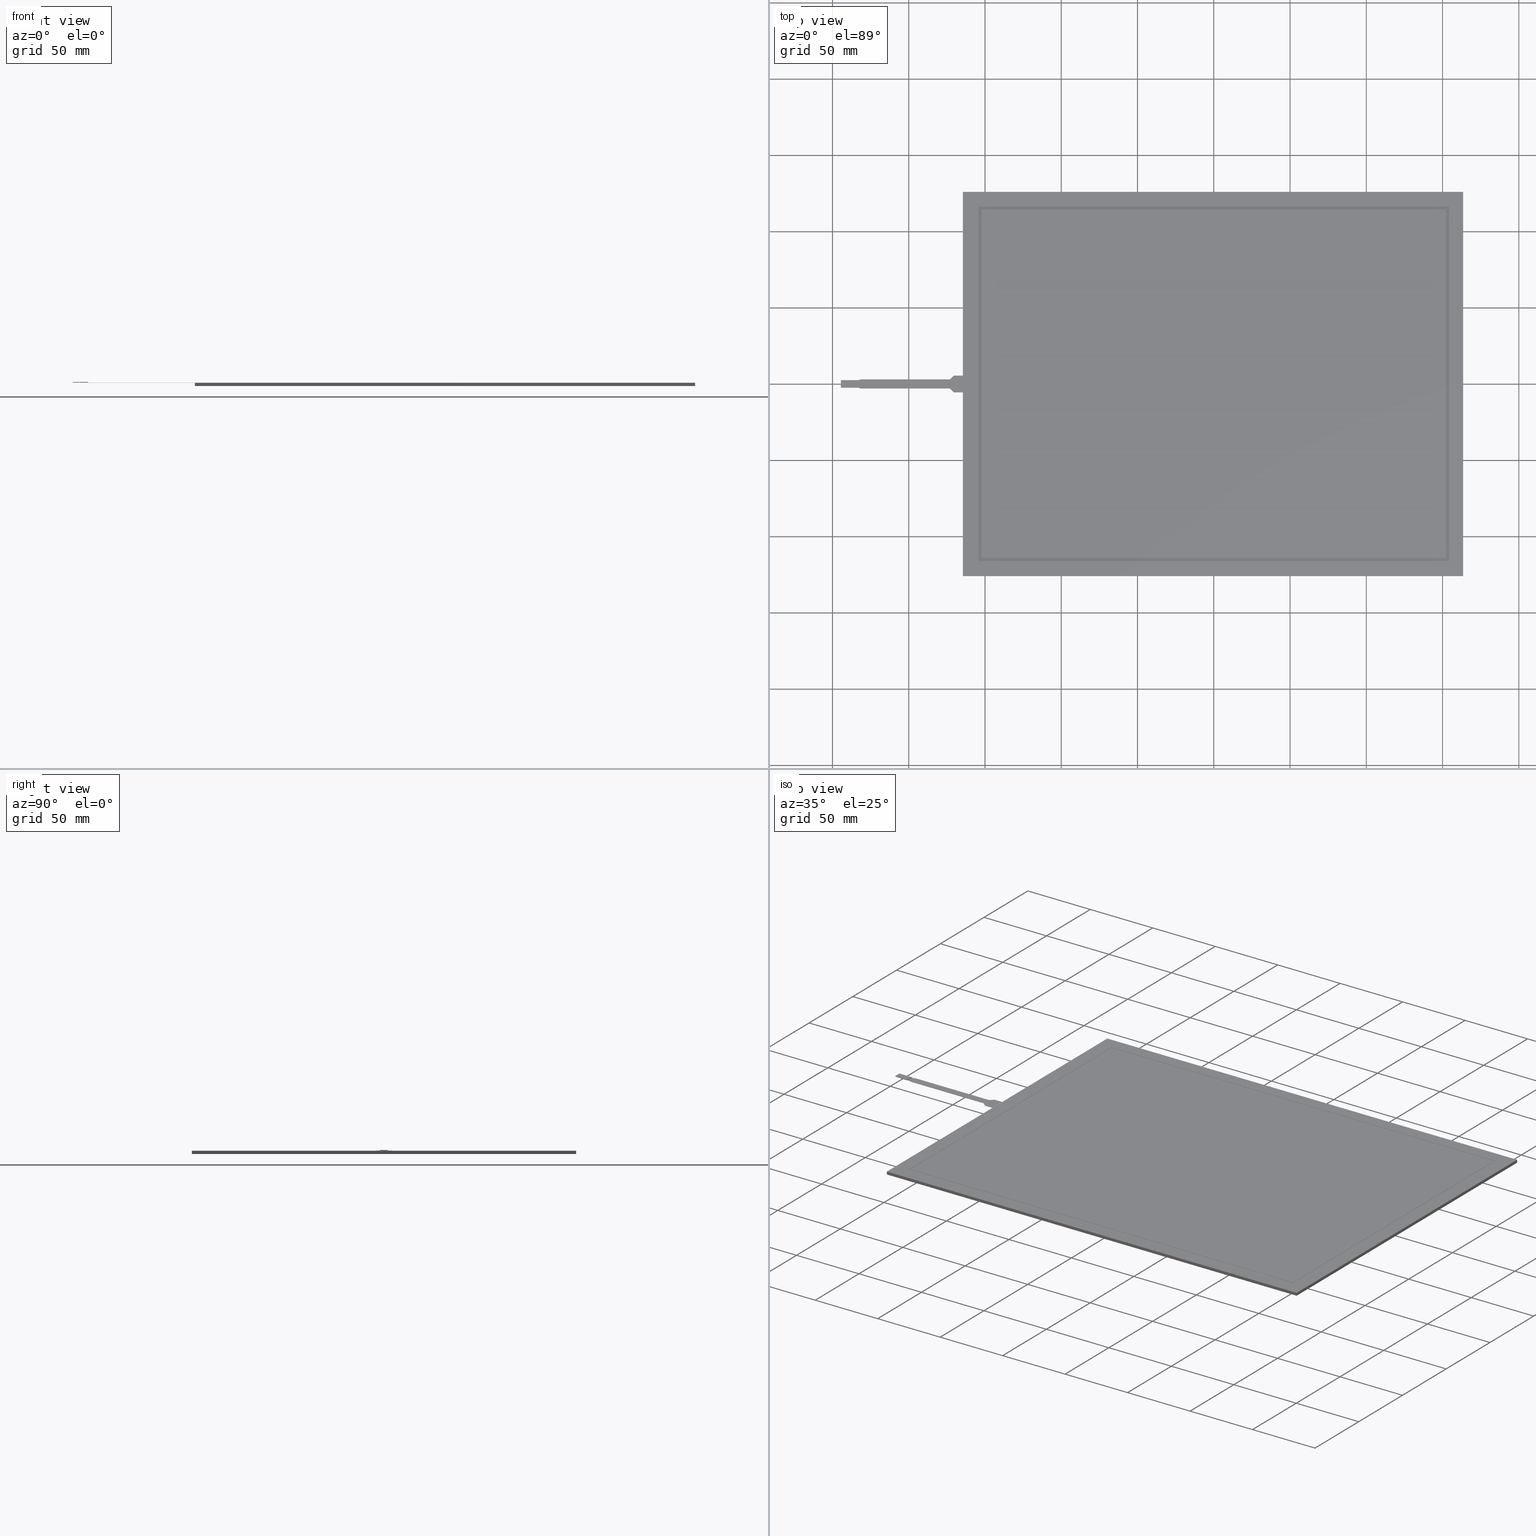
[diagram: canonical four-view strip — front | top / right | iso, engineering-drawing reading convention]
A machine part, canonical four-view strip (front | top / right | iso — engineering-drawing reading convention). The complete STEP part file that produces these views, byte-faithful:
ISO-10303-21;
HEADER;
/* Generated by software containing ST-Developer
 * from STEP Tools, Inc. (www.steptools.com) 
 */

FILE_DESCRIPTION(
/* description */ (''),
/* implementation_level */ '2;1');

FILE_NAME(
/* name */ 
'\\\\172.16.4.5\\\X2\65B06280885390E8\X0\$\\10 \X2\4E0066424FDD7BA1\X0\\\
\X2\5E737530\X0\\\\X2\2466\X0\3D\X2\30C730FC30BF\X0\\\3D\\LST-150C080C
\\LST-150C080C (3D\X2\30C730FC30BF\X0\).stp',
/* time_stamp */ '2024-09-13T17:03:50+09:00',
/* author */ ('n-hirata'),
/* organization */ (''),
/* preprocessor_version */ 'ST-DEVELOPER v18.1',
/* originating_system */ 'Autodesk Inventor 2020',
/* authorisation */ '');

FILE_SCHEMA (('CONFIG_CONTROL_DESIGN'));
ENDSEC;

DATA;
#10=MECHANICAL_DESIGN_GEOMETRIC_PRESENTATION_REPRESENTATION('',(#30,#31,
#32,#33,#34,#35,#36,#37,#38,#39,#40,#41,#42,#43,#44,#45),#1685);
#11=GEOMETRICALLY_BOUNDED_WIREFRAME_SHAPE_REPRESENTATION('',(#12),#1684);
#12=GEOMETRIC_CURVE_SET('\X2\30B930B130C330C1\X0\1',(#16,#17,#18,#19,#20,
#21,#22,#23,#24,#25,#26,#27,#28,#29));
#13=SHAPE_REPRESENTATION_RELATIONSHIP('SRR','None',#1692,#15);
#14=SHAPE_REPRESENTATION_RELATIONSHIP('SRR','None',#1692,#11);
#15=ADVANCED_BREP_SHAPE_REPRESENTATION('',(#64,#65),#1684);
#16=POLYLINE('',(#1654,#1655));
#17=POLYLINE('',(#1656,#1657));
#18=POLYLINE('',(#1658,#1659));
#19=POLYLINE('',(#1660,#1661));
#20=POLYLINE('',(#1662,#1663));
#21=POLYLINE('',(#1664,#1665));
#22=POLYLINE('',(#1666,#1667));
#23=POLYLINE('',(#1668,#1669));
#24=POLYLINE('',(#1670,#1671));
#25=POLYLINE('',(#1672,#1673));
#26=POLYLINE('',(#1674,#1675));
#27=POLYLINE('',(#1676,#1677));
#28=POLYLINE('',(#1678,#1679));
#29=POLYLINE('',(#1680,#1681));
#30=STYLED_ITEM('',(#1701),#64);
#31=STYLED_ITEM('',(#1701),#65);
#32=STYLED_ITEM('',(#1702),#16);
#33=STYLED_ITEM('',(#1702),#17);
#34=STYLED_ITEM('',(#1703),#18);
#35=STYLED_ITEM('',(#1703),#19);
#36=STYLED_ITEM('',(#1703),#20);
#37=STYLED_ITEM('',(#1703),#21);
#38=STYLED_ITEM('',(#1703),#22);
#39=STYLED_ITEM('',(#1703),#23);
#40=STYLED_ITEM('',(#1703),#24);
#41=STYLED_ITEM('',(#1703),#25);
#42=STYLED_ITEM('',(#1703),#26);
#43=STYLED_ITEM('',(#1703),#27);
#44=STYLED_ITEM('',(#1703),#28);
#45=STYLED_ITEM('',(#1703),#29);
#46=CIRCLE('',#1068,0.29999999999996);
#47=CIRCLE('',#1069,0.29999999999996);
#48=CIRCLE('',#1074,0.29999999999996);
#49=CIRCLE('',#1075,0.29999999999996);
#50=CIRCLE('',#1080,0.29999999999996);
#51=CIRCLE('',#1081,0.29999999999996);
#52=CIRCLE('',#1086,0.5);
#53=CIRCLE('',#1087,0.5);
#54=CIRCLE('',#1088,0.29999999999996);
#55=CIRCLE('',#1090,0.29999999999996);
#56=CIRCLE('',#1096,0.5);
#57=CIRCLE('',#1099,0.5);
#58=CYLINDRICAL_SURFACE('',#1067,0.29999999999996);
#59=CYLINDRICAL_SURFACE('',#1073,0.29999999999996);
#60=CYLINDRICAL_SURFACE('',#1079,0.29999999999996);
#61=CYLINDRICAL_SURFACE('',#1089,0.29999999999996);
#62=CYLINDRICAL_SURFACE('',#1095,0.5);
#63=CYLINDRICAL_SURFACE('',#1098,0.5);
#64=MANIFOLD_SOLID_BREP('\X2\30BD30EA30C330C9\X0\1',#1030);
#65=MANIFOLD_SOLID_BREP('\X2\30BD30EA30C330C9\X0\1',#1031);
#66=FACE_BOUND('',#129,.T.);
#67=FACE_BOUND('',#131,.T.);
#68=FACE_OUTER_BOUND('',#120,.T.);
#69=FACE_OUTER_BOUND('',#121,.T.);
#70=FACE_OUTER_BOUND('',#122,.T.);
#71=FACE_OUTER_BOUND('',#123,.T.);
#72=FACE_OUTER_BOUND('',#124,.T.);
#73=FACE_OUTER_BOUND('',#125,.T.);
#74=FACE_OUTER_BOUND('',#126,.T.);
#75=FACE_OUTER_BOUND('',#127,.T.);
#76=FACE_OUTER_BOUND('',#128,.T.);
#77=FACE_OUTER_BOUND('',#130,.T.);
#78=FACE_OUTER_BOUND('',#132,.T.);
#79=FACE_OUTER_BOUND('',#133,.T.);
#80=FACE_OUTER_BOUND('',#134,.T.);
#81=FACE_OUTER_BOUND('',#135,.T.);
#82=FACE_OUTER_BOUND('',#136,.T.);
#83=FACE_OUTER_BOUND('',#137,.T.);
#84=FACE_OUTER_BOUND('',#138,.T.);
#85=FACE_OUTER_BOUND('',#139,.T.);
#86=FACE_OUTER_BOUND('',#140,.T.);
#87=FACE_OUTER_BOUND('',#141,.T.);
#88=FACE_OUTER_BOUND('',#142,.T.);
#89=FACE_OUTER_BOUND('',#143,.T.);
#90=FACE_OUTER_BOUND('',#144,.T.);
#91=FACE_OUTER_BOUND('',#145,.T.);
#92=FACE_OUTER_BOUND('',#146,.T.);
#93=FACE_OUTER_BOUND('',#147,.T.);
#94=FACE_OUTER_BOUND('',#148,.T.);
#95=FACE_OUTER_BOUND('',#149,.T.);
#96=FACE_OUTER_BOUND('',#150,.T.);
#97=FACE_OUTER_BOUND('',#151,.T.);
#98=FACE_OUTER_BOUND('',#152,.T.);
#99=FACE_OUTER_BOUND('',#153,.T.);
#100=FACE_OUTER_BOUND('',#154,.T.);
#101=FACE_OUTER_BOUND('',#155,.T.);
#102=FACE_OUTER_BOUND('',#156,.T.);
#103=FACE_OUTER_BOUND('',#157,.T.);
#104=FACE_OUTER_BOUND('',#158,.T.);
#105=FACE_OUTER_BOUND('',#159,.T.);
#106=FACE_OUTER_BOUND('',#160,.T.);
#107=FACE_OUTER_BOUND('',#161,.T.);
#108=FACE_OUTER_BOUND('',#162,.T.);
#109=FACE_OUTER_BOUND('',#163,.T.);
#110=FACE_OUTER_BOUND('',#164,.T.);
#111=FACE_OUTER_BOUND('',#165,.T.);
#112=FACE_OUTER_BOUND('',#166,.T.);
#113=FACE_OUTER_BOUND('',#167,.T.);
#114=FACE_OUTER_BOUND('',#168,.T.);
#115=FACE_OUTER_BOUND('',#169,.T.);
#116=FACE_OUTER_BOUND('',#170,.T.);
#117=FACE_OUTER_BOUND('',#171,.T.);
#118=FACE_OUTER_BOUND('',#172,.T.);
#119=FACE_OUTER_BOUND('',#173,.T.);
#120=EDGE_LOOP('',(#656,#657,#658,#659));
#121=EDGE_LOOP('',(#660,#661,#662,#663));
#122=EDGE_LOOP('',(#664,#665,#666,#667));
#123=EDGE_LOOP('',(#668,#669,#670,#671));
#124=EDGE_LOOP('',(#672,#673,#674,#675));
#125=EDGE_LOOP('',(#676,#677,#678,#679));
#126=EDGE_LOOP('',(#680,#681,#682,#683));
#127=EDGE_LOOP('',(#684,#685,#686,#687));
#128=EDGE_LOOP('',(#688,#689,#690,#691));
#129=EDGE_LOOP('',(#692,#693,#694,#695));
#130=EDGE_LOOP('',(#696,#697,#698,#699));
#131=EDGE_LOOP('',(#700,#701,#702,#703));
#132=EDGE_LOOP('',(#704,#705,#706,#707));
#133=EDGE_LOOP('',(#708,#709,#710,#711));
#134=EDGE_LOOP('',(#712,#713,#714,#715));
#135=EDGE_LOOP('',(#716,#717,#718,#719));
#136=EDGE_LOOP('',(#720,#721,#722,#723));
#137=EDGE_LOOP('',(#724,#725,#726,#727));
#138=EDGE_LOOP('',(#728,#729,#730,#731));
#139=EDGE_LOOP('',(#732,#733,#734,#735));
#140=EDGE_LOOP('',(#736,#737,#738,#739));
#141=EDGE_LOOP('',(#740,#741,#742,#743));
#142=EDGE_LOOP('',(#744,#745,#746,#747));
#143=EDGE_LOOP('',(#748,#749,#750,#751));
#144=EDGE_LOOP('',(#752,#753,#754,#755));
#145=EDGE_LOOP('',(#756,#757,#758,#759));
#146=EDGE_LOOP('',(#760,#761,#762,#763));
#147=EDGE_LOOP('',(#764,#765,#766,#767));
#148=EDGE_LOOP('',(#768,#769,#770,#771));
#149=EDGE_LOOP('',(#772,#773,#774,#775));
#150=EDGE_LOOP('',(#776,#777,#778,#779,#780,#781,#782,#783,#784,#785,#786,
#787,#788,#789,#790,#791,#792,#793,#794,#795,#796,#797));
#151=EDGE_LOOP('',(#798,#799,#800,#801));
#152=EDGE_LOOP('',(#802,#803,#804,#805));
#153=EDGE_LOOP('',(#806,#807,#808,#809));
#154=EDGE_LOOP('',(#810,#811,#812,#813));
#155=EDGE_LOOP('',(#814,#815,#816,#817,#818,#819,#820,#821,#822,#823,#824,
#825,#826,#827,#828,#829,#830,#831,#832,#833));
#156=EDGE_LOOP('',(#834,#835,#836,#837));
#157=EDGE_LOOP('',(#838,#839,#840,#841));
#158=EDGE_LOOP('',(#842,#843,#844,#845));
#159=EDGE_LOOP('',(#846,#847,#848,#849,#850,#851,#852,#853));
#160=EDGE_LOOP('',(#854,#855,#856,#857));
#161=EDGE_LOOP('',(#858,#859,#860,#861,#862,#863));
#162=EDGE_LOOP('',(#864,#865,#866,#867));
#163=EDGE_LOOP('',(#868,#869,#870,#871));
#164=EDGE_LOOP('',(#872,#873,#874,#875));
#165=EDGE_LOOP('',(#876,#877,#878,#879));
#166=EDGE_LOOP('',(#880,#881,#882,#883));
#167=EDGE_LOOP('',(#884,#885,#886,#887,#888,#889,#890,#891));
#168=EDGE_LOOP('',(#892,#893,#894,#895));
#169=EDGE_LOOP('',(#896,#897,#898,#899));
#170=EDGE_LOOP('',(#900,#901,#902,#903));
#171=EDGE_LOOP('',(#904,#905,#906,#907));
#172=EDGE_LOOP('',(#908,#909,#910,#911,#912,#913,#914,#915,#916,#917,#918,
#919));
#173=EDGE_LOOP('',(#920,#921,#922,#923,#924,#925,#926,#927,#928,#929,#930,
#931));
#174=LINE('',#1375,#300);
#175=LINE('',#1377,#301);
#176=LINE('',#1379,#302);
#177=LINE('',#1380,#303);
#178=LINE('',#1383,#304);
#179=LINE('',#1385,#305);
#180=LINE('',#1386,#306);
#181=LINE('',#1389,#307);
#182=LINE('',#1391,#308);
#183=LINE('',#1392,#309);
#184=LINE('',#1394,#310);
#185=LINE('',#1395,#311);
#186=LINE('',#1399,#312);
#187=LINE('',#1401,#313);
#188=LINE('',#1403,#314);
#189=LINE('',#1404,#315);
#190=LINE('',#1407,#316);
#191=LINE('',#1409,#317);
#192=LINE('',#1410,#318);
#193=LINE('',#1413,#319);
#194=LINE('',#1415,#320);
#195=LINE('',#1416,#321);
#196=LINE('',#1418,#322);
#197=LINE('',#1419,#323);
#198=LINE('',#1424,#324);
#199=LINE('',#1426,#325);
#200=LINE('',#1428,#326);
#201=LINE('',#1429,#327);
#202=LINE('',#1432,#328);
#203=LINE('',#1434,#329);
#204=LINE('',#1435,#330);
#205=LINE('',#1438,#331);
#206=LINE('',#1439,#332);
#207=LINE('',#1442,#333);
#208=LINE('',#1443,#334);
#209=LINE('',#1445,#335);
#210=LINE('',#1453,#336);
#211=LINE('',#1456,#337);
#212=LINE('',#1459,#338);
#213=LINE('',#1461,#339);
#214=LINE('',#1462,#340);
#215=LINE('',#1465,#341);
#216=LINE('',#1467,#342);
#217=LINE('',#1468,#343);
#218=LINE('',#1470,#344);
#219=LINE('',#1476,#345);
#220=LINE('',#1479,#346);
#221=LINE('',#1482,#347);
#222=LINE('',#1484,#348);
#223=LINE('',#1485,#349);
#224=LINE('',#1488,#350);
#225=LINE('',#1490,#351);
#226=LINE('',#1491,#352);
#227=LINE('',#1493,#353);
#228=LINE('',#1499,#354);
#229=LINE('',#1502,#355);
#230=LINE('',#1505,#356);
#231=LINE('',#1507,#357);
#232=LINE('',#1508,#358);
#233=LINE('',#1511,#359);
#234=LINE('',#1513,#360);
#235=LINE('',#1514,#361);
#236=LINE('',#1516,#362);
#237=LINE('',#1519,#363);
#238=LINE('',#1521,#364);
#239=LINE('',#1525,#365);
#240=LINE('',#1529,#366);
#241=LINE('',#1531,#367);
#242=LINE('',#1533,#368);
#243=LINE('',#1537,#369);
#244=LINE('',#1538,#370);
#245=LINE('',#1539,#371);
#246=LINE('',#1540,#372);
#247=LINE('',#1543,#373);
#248=LINE('',#1546,#374);
#249=LINE('',#1549,#375);
#250=LINE('',#1550,#376);
#251=LINE('',#1553,#377);
#252=LINE('',#1554,#378);
#253=LINE('',#1556,#379);
#254=LINE('',#1559,#380);
#255=LINE('',#1561,#381);
#256=LINE('',#1562,#382);
#257=LINE('',#1567,#383);
#258=LINE('',#1568,#384);
#259=LINE('',#1571,#385);
#260=LINE('',#1572,#386);
#261=LINE('',#1576,#387);
#262=LINE('',#1579,#388);
#263=LINE('',#1581,#389);
#264=LINE('',#1583,#390);
#265=LINE('',#1585,#391);
#266=LINE('',#1586,#392);
#267=LINE('',#1589,#393);
#268=LINE('',#1591,#394);
#269=LINE('',#1592,#395);
#270=LINE('',#1594,#396);
#271=LINE('',#1598,#397);
#272=LINE('',#1600,#398);
#273=LINE('',#1602,#399);
#274=LINE('',#1603,#400);
#275=LINE('',#1606,#401);
#276=LINE('',#1608,#402);
#277=LINE('',#1609,#403);
#278=LINE('',#1612,#404);
#279=LINE('',#1614,#405);
#280=LINE('',#1615,#406);
#281=LINE('',#1618,#407);
#282=LINE('',#1620,#408);
#283=LINE('',#1621,#409);
#284=LINE('',#1624,#410);
#285=LINE('',#1626,#411);
#286=LINE('',#1627,#412);
#287=LINE('',#1629,#413);
#288=LINE('',#1630,#414);
#289=LINE('',#1633,#415);
#290=LINE('',#1635,#416);
#291=LINE('',#1636,#417);
#292=LINE('',#1639,#418);
#293=LINE('',#1641,#419);
#294=LINE('',#1642,#420);
#295=LINE('',#1645,#421);
#296=LINE('',#1647,#422);
#297=LINE('',#1648,#423);
#298=LINE('',#1650,#424);
#299=LINE('',#1651,#425);
#300=VECTOR('',#1119,10.);
#301=VECTOR('',#1120,10.);
#302=VECTOR('',#1121,10.);
#303=VECTOR('',#1122,10.);
#304=VECTOR('',#1125,10.);
#305=VECTOR('',#1126,10.);
#306=VECTOR('',#1127,10.);
#307=VECTOR('',#1130,10.);
#308=VECTOR('',#1131,10.);
#309=VECTOR('',#1132,10.);
#310=VECTOR('',#1135,10.);
#311=VECTOR('',#1136,10.);
#312=VECTOR('',#1139,10.);
#313=VECTOR('',#1140,10.);
#314=VECTOR('',#1141,10.);
#315=VECTOR('',#1142,10.);
#316=VECTOR('',#1145,10.);
#317=VECTOR('',#1146,10.);
#318=VECTOR('',#1147,10.);
#319=VECTOR('',#1150,10.);
#320=VECTOR('',#1151,10.);
#321=VECTOR('',#1152,10.);
#322=VECTOR('',#1155,10.);
#323=VECTOR('',#1156,10.);
#324=VECTOR('',#1161,10.);
#325=VECTOR('',#1162,10.);
#326=VECTOR('',#1163,10.);
#327=VECTOR('',#1164,10.);
#328=VECTOR('',#1167,10.);
#329=VECTOR('',#1168,10.);
#330=VECTOR('',#1169,10.);
#331=VECTOR('',#1172,10.);
#332=VECTOR('',#1173,10.);
#333=VECTOR('',#1176,10.);
#334=VECTOR('',#1177,10.);
#335=VECTOR('',#1180,10.);
#336=VECTOR('',#1189,10.);
#337=VECTOR('',#1192,10.);
#338=VECTOR('',#1195,10.);
#339=VECTOR('',#1196,10.);
#340=VECTOR('',#1197,10.);
#341=VECTOR('',#1200,10.);
#342=VECTOR('',#1201,10.);
#343=VECTOR('',#1202,10.);
#344=VECTOR('',#1205,10.);
#345=VECTOR('',#1210,10.);
#346=VECTOR('',#1213,10.);
#347=VECTOR('',#1216,10.);
#348=VECTOR('',#1217,10.);
#349=VECTOR('',#1218,10.);
#350=VECTOR('',#1221,10.);
#351=VECTOR('',#1222,10.);
#352=VECTOR('',#1223,10.);
#353=VECTOR('',#1226,10.);
#354=VECTOR('',#1231,10.);
#355=VECTOR('',#1234,10.);
#356=VECTOR('',#1237,10.);
#357=VECTOR('',#1238,10.);
#358=VECTOR('',#1239,10.);
#359=VECTOR('',#1242,10.);
#360=VECTOR('',#1243,10.);
#361=VECTOR('',#1244,10.);
#362=VECTOR('',#1247,10.);
#363=VECTOR('',#1250,10.);
#364=VECTOR('',#1251,10.);
#365=VECTOR('',#1254,10.);
#366=VECTOR('',#1257,10.);
#367=VECTOR('',#1258,10.);
#368=VECTOR('',#1259,10.);
#369=VECTOR('',#1262,10.);
#370=VECTOR('',#1263,10.);
#371=VECTOR('',#1264,10.);
#372=VECTOR('',#1265,10.);
#373=VECTOR('',#1268,10.);
#374=VECTOR('',#1271,10.);
#375=VECTOR('',#1274,10.);
#376=VECTOR('',#1275,10.);
#377=VECTOR('',#1278,10.);
#378=VECTOR('',#1279,10.);
#379=VECTOR('',#1282,10.);
#380=VECTOR('',#1285,10.);
#381=VECTOR('',#1286,10.);
#382=VECTOR('',#1287,10.);
#383=VECTOR('',#1292,10.);
#384=VECTOR('',#1293,10.);
#385=VECTOR('',#1296,10.);
#386=VECTOR('',#1297,10.);
#387=VECTOR('',#1302,10.);
#388=VECTOR('',#1305,10.);
#389=VECTOR('',#1306,10.);
#390=VECTOR('',#1307,10.);
#391=VECTOR('',#1308,10.);
#392=VECTOR('',#1309,10.);
#393=VECTOR('',#1312,10.);
#394=VECTOR('',#1313,10.);
#395=VECTOR('',#1314,10.);
#396=VECTOR('',#1317,10.);
#397=VECTOR('',#1320,10.);
#398=VECTOR('',#1321,10.);
#399=VECTOR('',#1322,10.);
#400=VECTOR('',#1323,10.);
#401=VECTOR('',#1326,10.);
#402=VECTOR('',#1327,10.);
#403=VECTOR('',#1328,10.);
#404=VECTOR('',#1331,10.);
#405=VECTOR('',#1332,10.);
#406=VECTOR('',#1333,10.);
#407=VECTOR('',#1336,10.);
#408=VECTOR('',#1337,10.);
#409=VECTOR('',#1338,10.);
#410=VECTOR('',#1341,10.);
#411=VECTOR('',#1342,10.);
#412=VECTOR('',#1343,10.);
#413=VECTOR('',#1346,10.);
#414=VECTOR('',#1347,10.);
#415=VECTOR('',#1350,10.);
#416=VECTOR('',#1351,10.);
#417=VECTOR('',#1352,10.);
#418=VECTOR('',#1355,10.);
#419=VECTOR('',#1356,10.);
#420=VECTOR('',#1357,10.);
#421=VECTOR('',#1360,10.);
#422=VECTOR('',#1361,10.);
#423=VECTOR('',#1362,10.);
#424=VECTOR('',#1365,10.);
#425=VECTOR('',#1366,10.);
#426=VERTEX_POINT('',#1373);
#427=VERTEX_POINT('',#1374);
#428=VERTEX_POINT('',#1376);
#429=VERTEX_POINT('',#1378);
#430=VERTEX_POINT('',#1382);
#431=VERTEX_POINT('',#1384);
#432=VERTEX_POINT('',#1388);
#433=VERTEX_POINT('',#1390);
#434=VERTEX_POINT('',#1397);
#435=VERTEX_POINT('',#1398);
#436=VERTEX_POINT('',#1400);
#437=VERTEX_POINT('',#1402);
#438=VERTEX_POINT('',#1406);
#439=VERTEX_POINT('',#1408);
#440=VERTEX_POINT('',#1412);
#441=VERTEX_POINT('',#1414);
#442=VERTEX_POINT('',#1422);
#443=VERTEX_POINT('',#1423);
#444=VERTEX_POINT('',#1425);
#445=VERTEX_POINT('',#1427);
#446=VERTEX_POINT('',#1431);
#447=VERTEX_POINT('',#1433);
#448=VERTEX_POINT('',#1437);
#449=VERTEX_POINT('',#1441);
#450=VERTEX_POINT('',#1449);
#451=VERTEX_POINT('',#1450);
#452=VERTEX_POINT('',#1452);
#453=VERTEX_POINT('',#1454);
#454=VERTEX_POINT('',#1458);
#455=VERTEX_POINT('',#1460);
#456=VERTEX_POINT('',#1464);
#457=VERTEX_POINT('',#1466);
#458=VERTEX_POINT('',#1472);
#459=VERTEX_POINT('',#1473);
#460=VERTEX_POINT('',#1475);
#461=VERTEX_POINT('',#1477);
#462=VERTEX_POINT('',#1481);
#463=VERTEX_POINT('',#1483);
#464=VERTEX_POINT('',#1487);
#465=VERTEX_POINT('',#1489);
#466=VERTEX_POINT('',#1495);
#467=VERTEX_POINT('',#1496);
#468=VERTEX_POINT('',#1498);
#469=VERTEX_POINT('',#1500);
#470=VERTEX_POINT('',#1504);
#471=VERTEX_POINT('',#1506);
#472=VERTEX_POINT('',#1510);
#473=VERTEX_POINT('',#1512);
#474=VERTEX_POINT('',#1518);
#475=VERTEX_POINT('',#1520);
#476=VERTEX_POINT('',#1522);
#477=VERTEX_POINT('',#1524);
#478=VERTEX_POINT('',#1526);
#479=VERTEX_POINT('',#1528);
#480=VERTEX_POINT('',#1530);
#481=VERTEX_POINT('',#1532);
#482=VERTEX_POINT('',#1534);
#483=VERTEX_POINT('',#1536);
#484=VERTEX_POINT('',#1542);
#485=VERTEX_POINT('',#1544);
#486=VERTEX_POINT('',#1548);
#487=VERTEX_POINT('',#1552);
#488=VERTEX_POINT('',#1558);
#489=VERTEX_POINT('',#1560);
#490=VERTEX_POINT('',#1564);
#491=VERTEX_POINT('',#1565);
#492=VERTEX_POINT('',#1570);
#493=VERTEX_POINT('',#1574);
#494=VERTEX_POINT('',#1578);
#495=VERTEX_POINT('',#1580);
#496=VERTEX_POINT('',#1582);
#497=VERTEX_POINT('',#1584);
#498=VERTEX_POINT('',#1588);
#499=VERTEX_POINT('',#1590);
#500=VERTEX_POINT('',#1596);
#501=VERTEX_POINT('',#1597);
#502=VERTEX_POINT('',#1599);
#503=VERTEX_POINT('',#1601);
#504=VERTEX_POINT('',#1605);
#505=VERTEX_POINT('',#1607);
#506=VERTEX_POINT('',#1611);
#507=VERTEX_POINT('',#1613);
#508=VERTEX_POINT('',#1617);
#509=VERTEX_POINT('',#1619);
#510=VERTEX_POINT('',#1623);
#511=VERTEX_POINT('',#1625);
#512=VERTEX_POINT('',#1632);
#513=VERTEX_POINT('',#1634);
#514=VERTEX_POINT('',#1638);
#515=VERTEX_POINT('',#1640);
#516=VERTEX_POINT('',#1644);
#517=VERTEX_POINT('',#1646);
#518=EDGE_CURVE('',#426,#427,#174,.T.);
#519=EDGE_CURVE('',#426,#428,#175,.T.);
#520=EDGE_CURVE('',#428,#429,#176,.T.);
#521=EDGE_CURVE('',#427,#429,#177,.T.);
#522=EDGE_CURVE('',#430,#426,#178,.T.);
#523=EDGE_CURVE('',#430,#431,#179,.T.);
#524=EDGE_CURVE('',#431,#428,#180,.T.);
#525=EDGE_CURVE('',#432,#430,#181,.T.);
#526=EDGE_CURVE('',#432,#433,#182,.T.);
#527=EDGE_CURVE('',#433,#431,#183,.T.);
#528=EDGE_CURVE('',#427,#432,#184,.T.);
#529=EDGE_CURVE('',#429,#433,#185,.T.);
#530=EDGE_CURVE('',#434,#435,#186,.T.);
#531=EDGE_CURVE('',#434,#436,#187,.T.);
#532=EDGE_CURVE('',#436,#437,#188,.T.);
#533=EDGE_CURVE('',#435,#437,#189,.T.);
#534=EDGE_CURVE('',#438,#434,#190,.T.);
#535=EDGE_CURVE('',#438,#439,#191,.T.);
#536=EDGE_CURVE('',#439,#436,#192,.T.);
#537=EDGE_CURVE('',#440,#438,#193,.T.);
#538=EDGE_CURVE('',#440,#441,#194,.T.);
#539=EDGE_CURVE('',#441,#439,#195,.T.);
#540=EDGE_CURVE('',#435,#440,#196,.T.);
#541=EDGE_CURVE('',#437,#441,#197,.T.);
#542=EDGE_CURVE('',#442,#443,#198,.T.);
#543=EDGE_CURVE('',#443,#444,#199,.T.);
#544=EDGE_CURVE('',#444,#445,#200,.T.);
#545=EDGE_CURVE('',#445,#442,#201,.T.);
#546=EDGE_CURVE('',#443,#446,#202,.T.);
#547=EDGE_CURVE('',#447,#446,#203,.T.);
#548=EDGE_CURVE('',#444,#447,#204,.T.);
#549=EDGE_CURVE('',#448,#447,#205,.T.);
#550=EDGE_CURVE('',#445,#448,#206,.T.);
#551=EDGE_CURVE('',#449,#448,#207,.T.);
#552=EDGE_CURVE('',#442,#449,#208,.T.);
#553=EDGE_CURVE('',#446,#449,#209,.T.);
#554=EDGE_CURVE('',#450,#451,#46,.T.);
#555=EDGE_CURVE('',#450,#452,#210,.T.);
#556=EDGE_CURVE('',#453,#452,#47,.T.);
#557=EDGE_CURVE('',#451,#453,#211,.T.);
#558=EDGE_CURVE('',#451,#454,#212,.T.);
#559=EDGE_CURVE('',#455,#453,#213,.T.);
#560=EDGE_CURVE('',#454,#455,#214,.T.);
#561=EDGE_CURVE('',#456,#450,#215,.T.);
#562=EDGE_CURVE('',#457,#456,#216,.T.);
#563=EDGE_CURVE('',#452,#457,#217,.T.);
#564=EDGE_CURVE('',#455,#457,#218,.T.);
#565=EDGE_CURVE('',#458,#459,#48,.T.);
#566=EDGE_CURVE('',#458,#460,#219,.T.);
#567=EDGE_CURVE('',#461,#460,#49,.T.);
#568=EDGE_CURVE('',#459,#461,#220,.T.);
#569=EDGE_CURVE('',#459,#462,#221,.T.);
#570=EDGE_CURVE('',#463,#461,#222,.T.);
#571=EDGE_CURVE('',#462,#463,#223,.T.);
#572=EDGE_CURVE('',#464,#458,#224,.T.);
#573=EDGE_CURVE('',#465,#464,#225,.T.);
#574=EDGE_CURVE('',#460,#465,#226,.T.);
#575=EDGE_CURVE('',#463,#465,#227,.T.);
#576=EDGE_CURVE('',#466,#467,#50,.T.);
#577=EDGE_CURVE('',#466,#468,#228,.T.);
#578=EDGE_CURVE('',#469,#468,#51,.T.);
#579=EDGE_CURVE('',#467,#469,#229,.T.);
#580=EDGE_CURVE('',#467,#470,#230,.T.);
#581=EDGE_CURVE('',#471,#469,#231,.T.);
#582=EDGE_CURVE('',#470,#471,#232,.T.);
#583=EDGE_CURVE('',#472,#466,#233,.T.);
#584=EDGE_CURVE('',#473,#472,#234,.T.);
#585=EDGE_CURVE('',#468,#473,#235,.T.);
#586=EDGE_CURVE('',#471,#473,#236,.T.);
#587=EDGE_CURVE('',#474,#454,#237,.T.);
#588=EDGE_CURVE('',#475,#474,#238,.T.);
#589=EDGE_CURVE('',#476,#475,#52,.T.);
#590=EDGE_CURVE('',#477,#476,#239,.T.);
#591=EDGE_CURVE('',#478,#477,#53,.T.);
#592=EDGE_CURVE('',#479,#478,#240,.T.);
#593=EDGE_CURVE('',#480,#479,#241,.T.);
#594=EDGE_CURVE('',#480,#481,#242,.T.);
#595=EDGE_CURVE('',#481,#482,#54,.T.);
#596=EDGE_CURVE('',#482,#483,#243,.T.);
#597=EDGE_CURVE('',#472,#483,#244,.T.);
#598=EDGE_CURVE('',#464,#470,#245,.T.);
#599=EDGE_CURVE('',#456,#462,#246,.T.);
#600=EDGE_CURVE('',#481,#484,#247,.T.);
#601=EDGE_CURVE('',#485,#484,#55,.T.);
#602=EDGE_CURVE('',#482,#485,#248,.T.);
#603=EDGE_CURVE('',#486,#485,#249,.T.);
#604=EDGE_CURVE('',#483,#486,#250,.T.);
#605=EDGE_CURVE('',#487,#480,#251,.T.);
#606=EDGE_CURVE('',#484,#487,#252,.T.);
#607=EDGE_CURVE('',#486,#487,#253,.T.);
#608=EDGE_CURVE('',#488,#479,#254,.T.);
#609=EDGE_CURVE('',#489,#488,#255,.T.);
#610=EDGE_CURVE('',#474,#489,#256,.T.);
#611=EDGE_CURVE('',#490,#491,#56,.T.);
#612=EDGE_CURVE('',#491,#476,#257,.T.);
#613=EDGE_CURVE('',#475,#490,#258,.T.);
#614=EDGE_CURVE('',#492,#491,#259,.T.);
#615=EDGE_CURVE('',#477,#492,#260,.T.);
#616=EDGE_CURVE('',#492,#493,#57,.T.);
#617=EDGE_CURVE('',#493,#478,#261,.T.);
#618=EDGE_CURVE('',#494,#489,#262,.T.);
#619=EDGE_CURVE('',#495,#494,#263,.T.);
#620=EDGE_CURVE('',#496,#495,#264,.T.);
#621=EDGE_CURVE('',#496,#497,#265,.T.);
#622=EDGE_CURVE('',#490,#497,#266,.T.);
#623=EDGE_CURVE('',#498,#496,#267,.T.);
#624=EDGE_CURVE('',#498,#499,#268,.T.);
#625=EDGE_CURVE('',#497,#499,#269,.T.);
#626=EDGE_CURVE('',#499,#493,#270,.T.);
#627=EDGE_CURVE('',#500,#501,#271,.T.);
#628=EDGE_CURVE('',#500,#502,#272,.T.);
#629=EDGE_CURVE('',#503,#502,#273,.T.);
#630=EDGE_CURVE('',#501,#503,#274,.T.);
#631=EDGE_CURVE('',#501,#504,#275,.T.);
#632=EDGE_CURVE('',#505,#503,#276,.T.);
#633=EDGE_CURVE('',#504,#505,#277,.T.);
#634=EDGE_CURVE('',#504,#506,#278,.T.);
#635=EDGE_CURVE('',#507,#505,#279,.T.);
#636=EDGE_CURVE('',#506,#507,#280,.T.);
#637=EDGE_CURVE('',#506,#508,#281,.T.);
#638=EDGE_CURVE('',#509,#507,#282,.T.);
#639=EDGE_CURVE('',#508,#509,#283,.T.);
#640=EDGE_CURVE('',#508,#510,#284,.T.);
#641=EDGE_CURVE('',#511,#509,#285,.T.);
#642=EDGE_CURVE('',#510,#511,#286,.T.);
#643=EDGE_CURVE('',#510,#498,#287,.T.);
#644=EDGE_CURVE('',#488,#511,#288,.T.);
#645=EDGE_CURVE('',#495,#512,#289,.T.);
#646=EDGE_CURVE('',#513,#494,#290,.T.);
#647=EDGE_CURVE('',#512,#513,#291,.T.);
#648=EDGE_CURVE('',#512,#514,#292,.T.);
#649=EDGE_CURVE('',#515,#513,#293,.T.);
#650=EDGE_CURVE('',#514,#515,#294,.T.);
#651=EDGE_CURVE('',#514,#516,#295,.T.);
#652=EDGE_CURVE('',#517,#515,#296,.T.);
#653=EDGE_CURVE('',#516,#517,#297,.T.);
#654=EDGE_CURVE('',#516,#500,#298,.T.);
#655=EDGE_CURVE('',#502,#517,#299,.T.);
#656=ORIENTED_EDGE('',*,*,#518,.F.);
#657=ORIENTED_EDGE('',*,*,#519,.T.);
#658=ORIENTED_EDGE('',*,*,#520,.T.);
#659=ORIENTED_EDGE('',*,*,#521,.F.);
#660=ORIENTED_EDGE('',*,*,#522,.F.);
#661=ORIENTED_EDGE('',*,*,#523,.T.);
#662=ORIENTED_EDGE('',*,*,#524,.T.);
#663=ORIENTED_EDGE('',*,*,#519,.F.);
#664=ORIENTED_EDGE('',*,*,#525,.F.);
#665=ORIENTED_EDGE('',*,*,#526,.T.);
#666=ORIENTED_EDGE('',*,*,#527,.T.);
#667=ORIENTED_EDGE('',*,*,#523,.F.);
#668=ORIENTED_EDGE('',*,*,#528,.F.);
#669=ORIENTED_EDGE('',*,*,#521,.T.);
#670=ORIENTED_EDGE('',*,*,#529,.T.);
#671=ORIENTED_EDGE('',*,*,#526,.F.);
#672=ORIENTED_EDGE('',*,*,#530,.F.);
#673=ORIENTED_EDGE('',*,*,#531,.T.);
#674=ORIENTED_EDGE('',*,*,#532,.T.);
#675=ORIENTED_EDGE('',*,*,#533,.F.);
#676=ORIENTED_EDGE('',*,*,#534,.F.);
#677=ORIENTED_EDGE('',*,*,#535,.T.);
#678=ORIENTED_EDGE('',*,*,#536,.T.);
#679=ORIENTED_EDGE('',*,*,#531,.F.);
#680=ORIENTED_EDGE('',*,*,#537,.F.);
#681=ORIENTED_EDGE('',*,*,#538,.T.);
#682=ORIENTED_EDGE('',*,*,#539,.T.);
#683=ORIENTED_EDGE('',*,*,#535,.F.);
#684=ORIENTED_EDGE('',*,*,#540,.F.);
#685=ORIENTED_EDGE('',*,*,#533,.T.);
#686=ORIENTED_EDGE('',*,*,#541,.T.);
#687=ORIENTED_EDGE('',*,*,#538,.F.);
#688=ORIENTED_EDGE('',*,*,#541,.F.);
#689=ORIENTED_EDGE('',*,*,#532,.F.);
#690=ORIENTED_EDGE('',*,*,#536,.F.);
#691=ORIENTED_EDGE('',*,*,#539,.F.);
#692=ORIENTED_EDGE('',*,*,#529,.F.);
#693=ORIENTED_EDGE('',*,*,#520,.F.);
#694=ORIENTED_EDGE('',*,*,#524,.F.);
#695=ORIENTED_EDGE('',*,*,#527,.F.);
#696=ORIENTED_EDGE('',*,*,#542,.T.);
#697=ORIENTED_EDGE('',*,*,#543,.T.);
#698=ORIENTED_EDGE('',*,*,#544,.T.);
#699=ORIENTED_EDGE('',*,*,#545,.T.);
#700=ORIENTED_EDGE('',*,*,#530,.T.);
#701=ORIENTED_EDGE('',*,*,#540,.T.);
#702=ORIENTED_EDGE('',*,*,#537,.T.);
#703=ORIENTED_EDGE('',*,*,#534,.T.);
#704=ORIENTED_EDGE('',*,*,#543,.F.);
#705=ORIENTED_EDGE('',*,*,#546,.T.);
#706=ORIENTED_EDGE('',*,*,#547,.F.);
#707=ORIENTED_EDGE('',*,*,#548,.F.);
#708=ORIENTED_EDGE('',*,*,#544,.F.);
#709=ORIENTED_EDGE('',*,*,#548,.T.);
#710=ORIENTED_EDGE('',*,*,#549,.F.);
#711=ORIENTED_EDGE('',*,*,#550,.F.);
#712=ORIENTED_EDGE('',*,*,#545,.F.);
#713=ORIENTED_EDGE('',*,*,#550,.T.);
#714=ORIENTED_EDGE('',*,*,#551,.F.);
#715=ORIENTED_EDGE('',*,*,#552,.F.);
#716=ORIENTED_EDGE('',*,*,#542,.F.);
#717=ORIENTED_EDGE('',*,*,#552,.T.);
#718=ORIENTED_EDGE('',*,*,#553,.F.);
#719=ORIENTED_EDGE('',*,*,#546,.F.);
#720=ORIENTED_EDGE('',*,*,#518,.T.);
#721=ORIENTED_EDGE('',*,*,#528,.T.);
#722=ORIENTED_EDGE('',*,*,#525,.T.);
#723=ORIENTED_EDGE('',*,*,#522,.T.);
#724=ORIENTED_EDGE('',*,*,#553,.T.);
#725=ORIENTED_EDGE('',*,*,#551,.T.);
#726=ORIENTED_EDGE('',*,*,#549,.T.);
#727=ORIENTED_EDGE('',*,*,#547,.T.);
#728=ORIENTED_EDGE('',*,*,#554,.F.);
#729=ORIENTED_EDGE('',*,*,#555,.T.);
#730=ORIENTED_EDGE('',*,*,#556,.F.);
#731=ORIENTED_EDGE('',*,*,#557,.F.);
#732=ORIENTED_EDGE('',*,*,#558,.F.);
#733=ORIENTED_EDGE('',*,*,#557,.T.);
#734=ORIENTED_EDGE('',*,*,#559,.F.);
#735=ORIENTED_EDGE('',*,*,#560,.F.);
#736=ORIENTED_EDGE('',*,*,#561,.F.);
#737=ORIENTED_EDGE('',*,*,#562,.F.);
#738=ORIENTED_EDGE('',*,*,#563,.F.);
#739=ORIENTED_EDGE('',*,*,#555,.F.);
#740=ORIENTED_EDGE('',*,*,#563,.T.);
#741=ORIENTED_EDGE('',*,*,#564,.F.);
#742=ORIENTED_EDGE('',*,*,#559,.T.);
#743=ORIENTED_EDGE('',*,*,#556,.T.);
#744=ORIENTED_EDGE('',*,*,#565,.F.);
#745=ORIENTED_EDGE('',*,*,#566,.T.);
#746=ORIENTED_EDGE('',*,*,#567,.F.);
#747=ORIENTED_EDGE('',*,*,#568,.F.);
#748=ORIENTED_EDGE('',*,*,#569,.F.);
#749=ORIENTED_EDGE('',*,*,#568,.T.);
#750=ORIENTED_EDGE('',*,*,#570,.F.);
#751=ORIENTED_EDGE('',*,*,#571,.F.);
#752=ORIENTED_EDGE('',*,*,#572,.F.);
#753=ORIENTED_EDGE('',*,*,#573,.F.);
#754=ORIENTED_EDGE('',*,*,#574,.F.);
#755=ORIENTED_EDGE('',*,*,#566,.F.);
#756=ORIENTED_EDGE('',*,*,#574,.T.);
#757=ORIENTED_EDGE('',*,*,#575,.F.);
#758=ORIENTED_EDGE('',*,*,#570,.T.);
#759=ORIENTED_EDGE('',*,*,#567,.T.);
#760=ORIENTED_EDGE('',*,*,#576,.F.);
#761=ORIENTED_EDGE('',*,*,#577,.T.);
#762=ORIENTED_EDGE('',*,*,#578,.F.);
#763=ORIENTED_EDGE('',*,*,#579,.F.);
#764=ORIENTED_EDGE('',*,*,#580,.F.);
#765=ORIENTED_EDGE('',*,*,#579,.T.);
#766=ORIENTED_EDGE('',*,*,#581,.F.);
#767=ORIENTED_EDGE('',*,*,#582,.F.);
#768=ORIENTED_EDGE('',*,*,#583,.F.);
#769=ORIENTED_EDGE('',*,*,#584,.F.);
#770=ORIENTED_EDGE('',*,*,#585,.F.);
#771=ORIENTED_EDGE('',*,*,#577,.F.);
#772=ORIENTED_EDGE('',*,*,#585,.T.);
#773=ORIENTED_EDGE('',*,*,#586,.F.);
#774=ORIENTED_EDGE('',*,*,#581,.T.);
#775=ORIENTED_EDGE('',*,*,#578,.T.);
#776=ORIENTED_EDGE('',*,*,#561,.T.);
#777=ORIENTED_EDGE('',*,*,#554,.T.);
#778=ORIENTED_EDGE('',*,*,#558,.T.);
#779=ORIENTED_EDGE('',*,*,#587,.F.);
#780=ORIENTED_EDGE('',*,*,#588,.F.);
#781=ORIENTED_EDGE('',*,*,#589,.F.);
#782=ORIENTED_EDGE('',*,*,#590,.F.);
#783=ORIENTED_EDGE('',*,*,#591,.F.);
#784=ORIENTED_EDGE('',*,*,#592,.F.);
#785=ORIENTED_EDGE('',*,*,#593,.F.);
#786=ORIENTED_EDGE('',*,*,#594,.T.);
#787=ORIENTED_EDGE('',*,*,#595,.T.);
#788=ORIENTED_EDGE('',*,*,#596,.T.);
#789=ORIENTED_EDGE('',*,*,#597,.F.);
#790=ORIENTED_EDGE('',*,*,#583,.T.);
#791=ORIENTED_EDGE('',*,*,#576,.T.);
#792=ORIENTED_EDGE('',*,*,#580,.T.);
#793=ORIENTED_EDGE('',*,*,#598,.F.);
#794=ORIENTED_EDGE('',*,*,#572,.T.);
#795=ORIENTED_EDGE('',*,*,#565,.T.);
#796=ORIENTED_EDGE('',*,*,#569,.T.);
#797=ORIENTED_EDGE('',*,*,#599,.F.);
#798=ORIENTED_EDGE('',*,*,#595,.F.);
#799=ORIENTED_EDGE('',*,*,#600,.T.);
#800=ORIENTED_EDGE('',*,*,#601,.F.);
#801=ORIENTED_EDGE('',*,*,#602,.F.);
#802=ORIENTED_EDGE('',*,*,#596,.F.);
#803=ORIENTED_EDGE('',*,*,#602,.T.);
#804=ORIENTED_EDGE('',*,*,#603,.F.);
#805=ORIENTED_EDGE('',*,*,#604,.F.);
#806=ORIENTED_EDGE('',*,*,#594,.F.);
#807=ORIENTED_EDGE('',*,*,#605,.F.);
#808=ORIENTED_EDGE('',*,*,#606,.F.);
#809=ORIENTED_EDGE('',*,*,#600,.F.);
#810=ORIENTED_EDGE('',*,*,#606,.T.);
#811=ORIENTED_EDGE('',*,*,#607,.F.);
#812=ORIENTED_EDGE('',*,*,#603,.T.);
#813=ORIENTED_EDGE('',*,*,#601,.T.);
#814=ORIENTED_EDGE('',*,*,#562,.T.);
#815=ORIENTED_EDGE('',*,*,#599,.T.);
#816=ORIENTED_EDGE('',*,*,#571,.T.);
#817=ORIENTED_EDGE('',*,*,#575,.T.);
#818=ORIENTED_EDGE('',*,*,#573,.T.);
#819=ORIENTED_EDGE('',*,*,#598,.T.);
#820=ORIENTED_EDGE('',*,*,#582,.T.);
#821=ORIENTED_EDGE('',*,*,#586,.T.);
#822=ORIENTED_EDGE('',*,*,#584,.T.);
#823=ORIENTED_EDGE('',*,*,#597,.T.);
#824=ORIENTED_EDGE('',*,*,#604,.T.);
#825=ORIENTED_EDGE('',*,*,#607,.T.);
#826=ORIENTED_EDGE('',*,*,#605,.T.);
#827=ORIENTED_EDGE('',*,*,#593,.T.);
#828=ORIENTED_EDGE('',*,*,#608,.F.);
#829=ORIENTED_EDGE('',*,*,#609,.F.);
#830=ORIENTED_EDGE('',*,*,#610,.F.);
#831=ORIENTED_EDGE('',*,*,#587,.T.);
#832=ORIENTED_EDGE('',*,*,#560,.T.);
#833=ORIENTED_EDGE('',*,*,#564,.T.);
#834=ORIENTED_EDGE('',*,*,#611,.T.);
#835=ORIENTED_EDGE('',*,*,#612,.T.);
#836=ORIENTED_EDGE('',*,*,#589,.T.);
#837=ORIENTED_EDGE('',*,*,#613,.T.);
#838=ORIENTED_EDGE('',*,*,#612,.F.);
#839=ORIENTED_EDGE('',*,*,#614,.F.);
#840=ORIENTED_EDGE('',*,*,#615,.F.);
#841=ORIENTED_EDGE('',*,*,#590,.T.);
#842=ORIENTED_EDGE('',*,*,#616,.T.);
#843=ORIENTED_EDGE('',*,*,#617,.T.);
#844=ORIENTED_EDGE('',*,*,#591,.T.);
#845=ORIENTED_EDGE('',*,*,#615,.T.);
#846=ORIENTED_EDGE('',*,*,#613,.F.);
#847=ORIENTED_EDGE('',*,*,#588,.T.);
#848=ORIENTED_EDGE('',*,*,#610,.T.);
#849=ORIENTED_EDGE('',*,*,#618,.F.);
#850=ORIENTED_EDGE('',*,*,#619,.F.);
#851=ORIENTED_EDGE('',*,*,#620,.F.);
#852=ORIENTED_EDGE('',*,*,#621,.T.);
#853=ORIENTED_EDGE('',*,*,#622,.F.);
#854=ORIENTED_EDGE('',*,*,#623,.F.);
#855=ORIENTED_EDGE('',*,*,#624,.T.);
#856=ORIENTED_EDGE('',*,*,#625,.F.);
#857=ORIENTED_EDGE('',*,*,#621,.F.);
#858=ORIENTED_EDGE('',*,*,#611,.F.);
#859=ORIENTED_EDGE('',*,*,#622,.T.);
#860=ORIENTED_EDGE('',*,*,#625,.T.);
#861=ORIENTED_EDGE('',*,*,#626,.T.);
#862=ORIENTED_EDGE('',*,*,#616,.F.);
#863=ORIENTED_EDGE('',*,*,#614,.T.);
#864=ORIENTED_EDGE('',*,*,#627,.F.);
#865=ORIENTED_EDGE('',*,*,#628,.T.);
#866=ORIENTED_EDGE('',*,*,#629,.F.);
#867=ORIENTED_EDGE('',*,*,#630,.F.);
#868=ORIENTED_EDGE('',*,*,#631,.F.);
#869=ORIENTED_EDGE('',*,*,#630,.T.);
#870=ORIENTED_EDGE('',*,*,#632,.F.);
#871=ORIENTED_EDGE('',*,*,#633,.F.);
#872=ORIENTED_EDGE('',*,*,#634,.F.);
#873=ORIENTED_EDGE('',*,*,#633,.T.);
#874=ORIENTED_EDGE('',*,*,#635,.F.);
#875=ORIENTED_EDGE('',*,*,#636,.F.);
#876=ORIENTED_EDGE('',*,*,#637,.F.);
#877=ORIENTED_EDGE('',*,*,#636,.T.);
#878=ORIENTED_EDGE('',*,*,#638,.F.);
#879=ORIENTED_EDGE('',*,*,#639,.F.);
#880=ORIENTED_EDGE('',*,*,#640,.F.);
#881=ORIENTED_EDGE('',*,*,#639,.T.);
#882=ORIENTED_EDGE('',*,*,#641,.F.);
#883=ORIENTED_EDGE('',*,*,#642,.F.);
#884=ORIENTED_EDGE('',*,*,#617,.F.);
#885=ORIENTED_EDGE('',*,*,#626,.F.);
#886=ORIENTED_EDGE('',*,*,#624,.F.);
#887=ORIENTED_EDGE('',*,*,#643,.F.);
#888=ORIENTED_EDGE('',*,*,#642,.T.);
#889=ORIENTED_EDGE('',*,*,#644,.F.);
#890=ORIENTED_EDGE('',*,*,#608,.T.);
#891=ORIENTED_EDGE('',*,*,#592,.T.);
#892=ORIENTED_EDGE('',*,*,#645,.F.);
#893=ORIENTED_EDGE('',*,*,#619,.T.);
#894=ORIENTED_EDGE('',*,*,#646,.F.);
#895=ORIENTED_EDGE('',*,*,#647,.F.);
#896=ORIENTED_EDGE('',*,*,#648,.F.);
#897=ORIENTED_EDGE('',*,*,#647,.T.);
#898=ORIENTED_EDGE('',*,*,#649,.F.);
#899=ORIENTED_EDGE('',*,*,#650,.F.);
#900=ORIENTED_EDGE('',*,*,#651,.F.);
#901=ORIENTED_EDGE('',*,*,#650,.T.);
#902=ORIENTED_EDGE('',*,*,#652,.F.);
#903=ORIENTED_EDGE('',*,*,#653,.F.);
#904=ORIENTED_EDGE('',*,*,#654,.F.);
#905=ORIENTED_EDGE('',*,*,#653,.T.);
#906=ORIENTED_EDGE('',*,*,#655,.F.);
#907=ORIENTED_EDGE('',*,*,#628,.F.);
#908=ORIENTED_EDGE('',*,*,#623,.T.);
#909=ORIENTED_EDGE('',*,*,#620,.T.);
#910=ORIENTED_EDGE('',*,*,#645,.T.);
#911=ORIENTED_EDGE('',*,*,#648,.T.);
#912=ORIENTED_EDGE('',*,*,#651,.T.);
#913=ORIENTED_EDGE('',*,*,#654,.T.);
#914=ORIENTED_EDGE('',*,*,#627,.T.);
#915=ORIENTED_EDGE('',*,*,#631,.T.);
#916=ORIENTED_EDGE('',*,*,#634,.T.);
#917=ORIENTED_EDGE('',*,*,#637,.T.);
#918=ORIENTED_EDGE('',*,*,#640,.T.);
#919=ORIENTED_EDGE('',*,*,#643,.T.);
#920=ORIENTED_EDGE('',*,*,#609,.T.);
#921=ORIENTED_EDGE('',*,*,#644,.T.);
#922=ORIENTED_EDGE('',*,*,#641,.T.);
#923=ORIENTED_EDGE('',*,*,#638,.T.);
#924=ORIENTED_EDGE('',*,*,#635,.T.);
#925=ORIENTED_EDGE('',*,*,#632,.T.);
#926=ORIENTED_EDGE('',*,*,#629,.T.);
#927=ORIENTED_EDGE('',*,*,#655,.T.);
#928=ORIENTED_EDGE('',*,*,#652,.T.);
#929=ORIENTED_EDGE('',*,*,#649,.T.);
#930=ORIENTED_EDGE('',*,*,#646,.T.);
#931=ORIENTED_EDGE('',*,*,#618,.T.);
#932=PLANE('',#1051);
#933=PLANE('',#1052);
#934=PLANE('',#1053);
#935=PLANE('',#1054);
#936=PLANE('',#1055);
#937=PLANE('',#1056);
#938=PLANE('',#1057);
#939=PLANE('',#1058);
#940=PLANE('',#1059);
#941=PLANE('',#1060);
#942=PLANE('',#1061);
#943=PLANE('',#1062);
#944=PLANE('',#1063);
#945=PLANE('',#1064);
#946=PLANE('',#1065);
#947=PLANE('',#1066);
#948=PLANE('',#1070);
#949=PLANE('',#1071);
#950=PLANE('',#1072);
#951=PLANE('',#1076);
#952=PLANE('',#1077);
#953=PLANE('',#1078);
#954=PLANE('',#1082);
#955=PLANE('',#1083);
#956=PLANE('',#1084);
#957=PLANE('',#1085);
#958=PLANE('',#1091);
#959=PLANE('',#1092);
#960=PLANE('',#1093);
#961=PLANE('',#1094);
#962=PLANE('',#1097);
#963=PLANE('',#1100);
#964=PLANE('',#1101);
#965=PLANE('',#1102);
#966=PLANE('',#1103);
#967=PLANE('',#1104);
#968=PLANE('',#1105);
#969=PLANE('',#1106);
#970=PLANE('',#1107);
#971=PLANE('',#1108);
#972=PLANE('',#1109);
#973=PLANE('',#1110);
#974=PLANE('',#1111);
#975=PLANE('',#1112);
#976=PLANE('',#1113);
#977=PLANE('',#1114);
#978=ADVANCED_FACE('',(#68),#932,.F.);
#979=ADVANCED_FACE('',(#69),#933,.F.);
#980=ADVANCED_FACE('',(#70),#934,.F.);
#981=ADVANCED_FACE('',(#71),#935,.F.);
#982=ADVANCED_FACE('',(#72),#936,.F.);
#983=ADVANCED_FACE('',(#73),#937,.F.);
#984=ADVANCED_FACE('',(#74),#938,.F.);
#985=ADVANCED_FACE('',(#75),#939,.F.);
#986=ADVANCED_FACE('',(#76,#66),#940,.F.);
#987=ADVANCED_FACE('',(#77,#67),#941,.T.);
#988=ADVANCED_FACE('',(#78),#942,.T.);
#989=ADVANCED_FACE('',(#79),#943,.T.);
#990=ADVANCED_FACE('',(#80),#944,.T.);
#991=ADVANCED_FACE('',(#81),#945,.T.);
#992=ADVANCED_FACE('',(#82),#946,.T.);
#993=ADVANCED_FACE('',(#83),#947,.T.);
#994=ADVANCED_FACE('',(#84),#58,.T.);
#995=ADVANCED_FACE('',(#85),#948,.T.);
#996=ADVANCED_FACE('',(#86),#949,.T.);
#997=ADVANCED_FACE('',(#87),#950,.T.);
#998=ADVANCED_FACE('',(#88),#59,.T.);
#999=ADVANCED_FACE('',(#89),#951,.T.);
#1000=ADVANCED_FACE('',(#90),#952,.T.);
#1001=ADVANCED_FACE('',(#91),#953,.T.);
#1002=ADVANCED_FACE('',(#92),#60,.T.);
#1003=ADVANCED_FACE('',(#93),#954,.T.);
#1004=ADVANCED_FACE('',(#94),#955,.T.);
#1005=ADVANCED_FACE('',(#95),#956,.T.);
#1006=ADVANCED_FACE('',(#96),#957,.F.);
#1007=ADVANCED_FACE('',(#97),#61,.T.);
#1008=ADVANCED_FACE('',(#98),#958,.T.);
#1009=ADVANCED_FACE('',(#99),#959,.T.);
#1010=ADVANCED_FACE('',(#100),#960,.T.);
#1011=ADVANCED_FACE('',(#101),#961,.F.);
#1012=ADVANCED_FACE('',(#102),#62,.T.);
#1013=ADVANCED_FACE('',(#103),#962,.T.);
#1014=ADVANCED_FACE('',(#104),#63,.T.);
#1015=ADVANCED_FACE('',(#105),#963,.T.);
#1016=ADVANCED_FACE('',(#106),#964,.T.);
#1017=ADVANCED_FACE('',(#107),#965,.T.);
#1018=ADVANCED_FACE('',(#108),#966,.T.);
#1019=ADVANCED_FACE('',(#109),#967,.T.);
#1020=ADVANCED_FACE('',(#110),#968,.T.);
#1021=ADVANCED_FACE('',(#111),#969,.T.);
#1022=ADVANCED_FACE('',(#112),#970,.T.);
#1023=ADVANCED_FACE('',(#113),#971,.T.);
#1024=ADVANCED_FACE('',(#114),#972,.T.);
#1025=ADVANCED_FACE('',(#115),#973,.T.);
#1026=ADVANCED_FACE('',(#116),#974,.T.);
#1027=ADVANCED_FACE('',(#117),#975,.T.);
#1028=ADVANCED_FACE('',(#118),#976,.T.);
#1029=ADVANCED_FACE('',(#119),#977,.T.);
#1030=CLOSED_SHELL('',(#978,#979,#980,#981,#982,#983,#984,#985,#986,#987,
#988,#989,#990,#991,#992,#993));
#1031=CLOSED_SHELL('',(#994,#995,#996,#997,#998,#999,#1000,#1001,#1002,
#1003,#1004,#1005,#1006,#1007,#1008,#1009,#1010,#1011,#1012,#1013,#1014,
#1015,#1016,#1017,#1018,#1019,#1020,#1021,#1022,#1023,#1024,#1025,#1026,
#1027,#1028,#1029));
#1032=DERIVED_UNIT_ELEMENT(#1034,1.);
#1033=DERIVED_UNIT_ELEMENT(#1687,3.);
#1034=(
MASS_UNIT()
NAMED_UNIT(*)
SI_UNIT($,.GRAM.)
);
#1035=DERIVED_UNIT((#1032,#1033));
#1036=MEASURE_REPRESENTATION_ITEM('density measure',
POSITIVE_RATIO_MEASURE(1.),#1035);
#1037=PROPERTY_DEFINITION_REPRESENTATION(#1042,#1039);
#1038=PROPERTY_DEFINITION_REPRESENTATION(#1043,#1040);
#1039=REPRESENTATION('material name',(#1041),#1684);
#1040=REPRESENTATION('density',(#1036),#1684);
#1041=DESCRIPTIVE_REPRESENTATION_ITEM('\X2\4E00822C\X0\','\X2\4E00822C\X0\');
#1042=PROPERTY_DEFINITION('material property','material name',#1694);
#1043=PROPERTY_DEFINITION('material property','density of part',#1694);
#1044=DATE_TIME_ROLE('creation_date');
#1045=CC_DESIGN_DATE_AND_TIME_ASSIGNMENT(#1046,#1044,(#1694));
#1046=DATE_AND_TIME(#1047,#1048);
#1047=CALENDAR_DATE(2024,6,9);
#1048=LOCAL_TIME(6,30,8.,#1049);
#1049=COORDINATED_UNIVERSAL_TIME_OFFSET(0,0,.BEHIND.);
#1050=AXIS2_PLACEMENT_3D('placement',#1371,#1115,#1116);
#1051=AXIS2_PLACEMENT_3D('',#1372,#1117,#1118);
#1052=AXIS2_PLACEMENT_3D('',#1381,#1123,#1124);
#1053=AXIS2_PLACEMENT_3D('',#1387,#1128,#1129);
#1054=AXIS2_PLACEMENT_3D('',#1393,#1133,#1134);
#1055=AXIS2_PLACEMENT_3D('',#1396,#1137,#1138);
#1056=AXIS2_PLACEMENT_3D('',#1405,#1143,#1144);
#1057=AXIS2_PLACEMENT_3D('',#1411,#1148,#1149);
#1058=AXIS2_PLACEMENT_3D('',#1417,#1153,#1154);
#1059=AXIS2_PLACEMENT_3D('',#1420,#1157,#1158);
#1060=AXIS2_PLACEMENT_3D('',#1421,#1159,#1160);
#1061=AXIS2_PLACEMENT_3D('',#1430,#1165,#1166);
#1062=AXIS2_PLACEMENT_3D('',#1436,#1170,#1171);
#1063=AXIS2_PLACEMENT_3D('',#1440,#1174,#1175);
#1064=AXIS2_PLACEMENT_3D('',#1444,#1178,#1179);
#1065=AXIS2_PLACEMENT_3D('',#1446,#1181,#1182);
#1066=AXIS2_PLACEMENT_3D('',#1447,#1183,#1184);
#1067=AXIS2_PLACEMENT_3D('',#1448,#1185,#1186);
#1068=AXIS2_PLACEMENT_3D('',#1451,#1187,#1188);
#1069=AXIS2_PLACEMENT_3D('',#1455,#1190,#1191);
#1070=AXIS2_PLACEMENT_3D('',#1457,#1193,#1194);
#1071=AXIS2_PLACEMENT_3D('',#1463,#1198,#1199);
#1072=AXIS2_PLACEMENT_3D('',#1469,#1203,#1204);
#1073=AXIS2_PLACEMENT_3D('',#1471,#1206,#1207);
#1074=AXIS2_PLACEMENT_3D('',#1474,#1208,#1209);
#1075=AXIS2_PLACEMENT_3D('',#1478,#1211,#1212);
#1076=AXIS2_PLACEMENT_3D('',#1480,#1214,#1215);
#1077=AXIS2_PLACEMENT_3D('',#1486,#1219,#1220);
#1078=AXIS2_PLACEMENT_3D('',#1492,#1224,#1225);
#1079=AXIS2_PLACEMENT_3D('',#1494,#1227,#1228);
#1080=AXIS2_PLACEMENT_3D('',#1497,#1229,#1230);
#1081=AXIS2_PLACEMENT_3D('',#1501,#1232,#1233);
#1082=AXIS2_PLACEMENT_3D('',#1503,#1235,#1236);
#1083=AXIS2_PLACEMENT_3D('',#1509,#1240,#1241);
#1084=AXIS2_PLACEMENT_3D('',#1515,#1245,#1246);
#1085=AXIS2_PLACEMENT_3D('',#1517,#1248,#1249);
#1086=AXIS2_PLACEMENT_3D('',#1523,#1252,#1253);
#1087=AXIS2_PLACEMENT_3D('',#1527,#1255,#1256);
#1088=AXIS2_PLACEMENT_3D('',#1535,#1260,#1261);
#1089=AXIS2_PLACEMENT_3D('',#1541,#1266,#1267);
#1090=AXIS2_PLACEMENT_3D('',#1545,#1269,#1270);
#1091=AXIS2_PLACEMENT_3D('',#1547,#1272,#1273);
#1092=AXIS2_PLACEMENT_3D('',#1551,#1276,#1277);
#1093=AXIS2_PLACEMENT_3D('',#1555,#1280,#1281);
#1094=AXIS2_PLACEMENT_3D('',#1557,#1283,#1284);
#1095=AXIS2_PLACEMENT_3D('',#1563,#1288,#1289);
#1096=AXIS2_PLACEMENT_3D('',#1566,#1290,#1291);
#1097=AXIS2_PLACEMENT_3D('',#1569,#1294,#1295);
#1098=AXIS2_PLACEMENT_3D('',#1573,#1298,#1299);
#1099=AXIS2_PLACEMENT_3D('',#1575,#1300,#1301);
#1100=AXIS2_PLACEMENT_3D('',#1577,#1303,#1304);
#1101=AXIS2_PLACEMENT_3D('',#1587,#1310,#1311);
#1102=AXIS2_PLACEMENT_3D('',#1593,#1315,#1316);
#1103=AXIS2_PLACEMENT_3D('',#1595,#1318,#1319);
#1104=AXIS2_PLACEMENT_3D('',#1604,#1324,#1325);
#1105=AXIS2_PLACEMENT_3D('',#1610,#1329,#1330);
#1106=AXIS2_PLACEMENT_3D('',#1616,#1334,#1335);
#1107=AXIS2_PLACEMENT_3D('',#1622,#1339,#1340);
#1108=AXIS2_PLACEMENT_3D('',#1628,#1344,#1345);
#1109=AXIS2_PLACEMENT_3D('',#1631,#1348,#1349);
#1110=AXIS2_PLACEMENT_3D('',#1637,#1353,#1354);
#1111=AXIS2_PLACEMENT_3D('',#1643,#1358,#1359);
#1112=AXIS2_PLACEMENT_3D('',#1649,#1363,#1364);
#1113=AXIS2_PLACEMENT_3D('',#1652,#1367,#1368);
#1114=AXIS2_PLACEMENT_3D('',#1653,#1369,#1370);
#1115=DIRECTION('axis',(0.,0.,1.));
#1116=DIRECTION('refdir',(1.,0.,0.));
#1117=DIRECTION('center_axis',(0.,1.,0.));
#1118=DIRECTION('ref_axis',(1.,0.,0.));
#1119=DIRECTION('',(1.,0.,0.));
#1120=DIRECTION('',(0.,0.,-1.));
#1121=DIRECTION('',(1.,0.,0.));
#1122=DIRECTION('',(0.,0.,-1.));
#1123=DIRECTION('center_axis',(1.,0.,0.));
#1124=DIRECTION('ref_axis',(0.,-1.,0.));
#1125=DIRECTION('',(0.,-1.,0.));
#1126=DIRECTION('',(0.,0.,-1.));
#1127=DIRECTION('',(0.,-1.,0.));
#1128=DIRECTION('center_axis',(0.,-1.,0.));
#1129=DIRECTION('ref_axis',(-1.,0.,0.));
#1130=DIRECTION('',(-1.,0.,0.));
#1131=DIRECTION('',(0.,0.,-1.));
#1132=DIRECTION('',(-1.,0.,0.));
#1133=DIRECTION('center_axis',(-1.,0.,0.));
#1134=DIRECTION('ref_axis',(0.,1.,0.));
#1135=DIRECTION('',(0.,1.,0.));
#1136=DIRECTION('',(0.,1.,0.));
#1137=DIRECTION('center_axis',(-1.,-2.29108792699946E-16,0.));
#1138=DIRECTION('ref_axis',(-2.29108792699946E-16,1.,0.));
#1139=DIRECTION('',(-2.29108792699946E-16,1.,0.));
#1140=DIRECTION('',(0.,0.,-1.));
#1141=DIRECTION('',(-2.29108792699946E-16,1.,0.));
#1142=DIRECTION('',(0.,0.,-1.));
#1143=DIRECTION('center_axis',(1.72668584330776E-16,-1.,0.));
#1144=DIRECTION('ref_axis',(-1.,-1.72668584330776E-16,0.));
#1145=DIRECTION('',(-1.,-1.72668584330776E-16,0.));
#1146=DIRECTION('',(0.,0.,-1.));
#1147=DIRECTION('',(-1.,-1.72668584330776E-16,0.));
#1148=DIRECTION('center_axis',(1.,7.63695975666488E-17,0.));
#1149=DIRECTION('ref_axis',(7.63695975666488E-17,-1.,0.));
#1150=DIRECTION('',(7.63695975666488E-17,-1.,0.));
#1151=DIRECTION('',(0.,0.,-1.));
#1152=DIRECTION('',(7.63695975666488E-17,-1.,0.));
#1153=DIRECTION('center_axis',(0.,1.,0.));
#1154=DIRECTION('ref_axis',(1.,0.,0.));
#1155=DIRECTION('',(1.,0.,0.));
#1156=DIRECTION('',(1.,0.,0.));
#1157=DIRECTION('center_axis',(0.,0.,-1.));
#1158=DIRECTION('ref_axis',(-1.,0.,0.));
#1159=DIRECTION('center_axis',(0.,0.,1.));
#1160=DIRECTION('ref_axis',(1.,0.,0.));
#1161=DIRECTION('',(-1.,0.,0.));
#1162=DIRECTION('',(4.22942104619107E-16,-1.,0.));
#1163=DIRECTION('',(1.,5.41572207134223E-17,0.));
#1164=DIRECTION('',(0.,1.,0.));
#1165=DIRECTION('center_axis',(-1.,-4.22942104619107E-16,0.));
#1166=DIRECTION('ref_axis',(-4.22942104619107E-16,1.,0.));
#1167=DIRECTION('',(0.,0.,-1.));
#1168=DIRECTION('',(-4.22942104619107E-16,1.,0.));
#1169=DIRECTION('',(0.,0.,-1.));
#1170=DIRECTION('center_axis',(5.41572207134223E-17,-1.,0.));
#1171=DIRECTION('ref_axis',(-1.,-5.41572207134223E-17,0.));
#1172=DIRECTION('',(-1.,-5.41572207134223E-17,0.));
#1173=DIRECTION('',(0.,0.,-1.));
#1174=DIRECTION('center_axis',(1.,0.,0.));
#1175=DIRECTION('ref_axis',(0.,-1.,0.));
#1176=DIRECTION('',(0.,-1.,0.));
#1177=DIRECTION('',(0.,0.,-1.));
#1178=DIRECTION('center_axis',(0.,1.,0.));
#1179=DIRECTION('ref_axis',(1.,0.,0.));
#1180=DIRECTION('',(1.,0.,0.));
#1181=DIRECTION('center_axis',(0.,0.,1.));
#1182=DIRECTION('ref_axis',(1.,0.,0.));
#1183=DIRECTION('center_axis',(0.,0.,-1.));
#1184=DIRECTION('ref_axis',(-1.,0.,0.));
#1185=DIRECTION('center_axis',(0.,0.,-1.));
#1186=DIRECTION('ref_axis',(0.,-1.,0.));
#1187=DIRECTION('center_axis',(0.,0.,1.));
#1188=DIRECTION('ref_axis',(0.,-1.,0.));
#1189=DIRECTION('',(0.,0.,-1.));
#1190=DIRECTION('center_axis',(0.,0.,-1.));
#1191=DIRECTION('ref_axis',(0.,-1.,0.));
#1192=DIRECTION('',(0.,0.,-1.));
#1193=DIRECTION('center_axis',(4.98976640280965E-16,-1.,0.));
#1194=DIRECTION('ref_axis',(-1.,-4.98976640280965E-16,0.));
#1195=DIRECTION('',(1.,4.98976640280965E-16,0.));
#1196=DIRECTION('',(-1.,-4.98976640280965E-16,0.));
#1197=DIRECTION('',(0.,0.,-1.));
#1198=DIRECTION('center_axis',(4.98976640280969E-16,1.,0.));
#1199=DIRECTION('ref_axis',(1.,-4.98976640280969E-16,0.));
#1200=DIRECTION('',(-1.,4.98976640280969E-16,0.));
#1201=DIRECTION('',(0.,0.,1.));
#1202=DIRECTION('',(1.,-4.98976640280969E-16,0.));
#1203=DIRECTION('center_axis',(0.,0.,-1.));
#1204=DIRECTION('ref_axis',(-1.,0.,0.));
#1205=DIRECTION('',(0.,1.,0.));
#1206=DIRECTION('center_axis',(0.,0.,-1.));
#1207=DIRECTION('ref_axis',(0.,-1.,0.));
#1208=DIRECTION('center_axis',(0.,0.,1.));
#1209=DIRECTION('ref_axis',(0.,-1.,0.));
#1210=DIRECTION('',(0.,0.,-1.));
#1211=DIRECTION('center_axis',(0.,0.,-1.));
#1212=DIRECTION('ref_axis',(0.,-1.,0.));
#1213=DIRECTION('',(0.,0.,-1.));
#1214=DIRECTION('center_axis',(4.98976640280965E-16,-1.,0.));
#1215=DIRECTION('ref_axis',(-1.,-4.98976640280965E-16,0.));
#1216=DIRECTION('',(1.,4.98976640280965E-16,0.));
#1217=DIRECTION('',(-1.,-4.98976640280965E-16,0.));
#1218=DIRECTION('',(0.,0.,-1.));
#1219=DIRECTION('center_axis',(4.98976640280969E-16,1.,0.));
#1220=DIRECTION('ref_axis',(1.,-4.98976640280969E-16,0.));
#1221=DIRECTION('',(-1.,4.98976640280969E-16,0.));
#1222=DIRECTION('',(0.,0.,1.));
#1223=DIRECTION('',(1.,-4.98976640280969E-16,0.));
#1224=DIRECTION('center_axis',(0.,0.,-1.));
#1225=DIRECTION('ref_axis',(-1.,0.,0.));
#1226=DIRECTION('',(0.,1.,0.));
#1227=DIRECTION('center_axis',(0.,0.,-1.));
#1228=DIRECTION('ref_axis',(0.,-1.,0.));
#1229=DIRECTION('center_axis',(0.,0.,1.));
#1230=DIRECTION('ref_axis',(0.,-1.,0.));
#1231=DIRECTION('',(0.,0.,-1.));
#1232=DIRECTION('center_axis',(0.,0.,-1.));
#1233=DIRECTION('ref_axis',(0.,-1.,0.));
#1234=DIRECTION('',(0.,0.,-1.));
#1235=DIRECTION('center_axis',(4.98976640280965E-16,-1.,0.));
#1236=DIRECTION('ref_axis',(-1.,-4.98976640280965E-16,0.));
#1237=DIRECTION('',(1.,4.98976640280965E-16,0.));
#1238=DIRECTION('',(-1.,-4.98976640280965E-16,0.));
#1239=DIRECTION('',(0.,0.,-1.));
#1240=DIRECTION('center_axis',(4.98976640280969E-16,1.,0.));
#1241=DIRECTION('ref_axis',(1.,-4.98976640280969E-16,0.));
#1242=DIRECTION('',(-1.,4.98976640280969E-16,0.));
#1243=DIRECTION('',(0.,0.,1.));
#1244=DIRECTION('',(1.,-4.98976640280969E-16,0.));
#1245=DIRECTION('center_axis',(0.,0.,-1.));
#1246=DIRECTION('ref_axis',(-1.,0.,0.));
#1247=DIRECTION('',(0.,1.,0.));
#1248=DIRECTION('center_axis',(0.,0.,1.));
#1249=DIRECTION('ref_axis',(1.,0.,0.));
#1250=DIRECTION('',(0.,1.,0.));
#1251=DIRECTION('',(1.,7.40148683083438E-16,0.));
#1252=DIRECTION('center_axis',(0.,0.,1.));
#1253=DIRECTION('ref_axis',(-0.707106781186578,-0.707106781186517,0.));
#1254=DIRECTION('',(0.,-1.,0.));
#1255=DIRECTION('center_axis',(0.,0.,1.));
#1256=DIRECTION('ref_axis',(-0.707106781186578,0.707106781186517,0.));
#1257=DIRECTION('',(-1.,-9.25185853854298E-16,0.));
#1258=DIRECTION('',(0.,1.,0.));
#1259=DIRECTION('',(-1.,4.98976640280969E-16,0.));
#1260=DIRECTION('center_axis',(0.,0.,1.));
#1261=DIRECTION('ref_axis',(0.,-1.,0.));
#1262=DIRECTION('',(1.,4.98976640280965E-16,0.));
#1263=DIRECTION('',(0.,1.,0.));
#1264=DIRECTION('',(0.,1.,0.));
#1265=DIRECTION('',(0.,1.,0.));
#1266=DIRECTION('center_axis',(0.,0.,-1.));
#1267=DIRECTION('ref_axis',(0.,-1.,0.));
#1268=DIRECTION('',(0.,0.,-1.));
#1269=DIRECTION('center_axis',(0.,0.,-1.));
#1270=DIRECTION('ref_axis',(0.,-1.,0.));
#1271=DIRECTION('',(0.,0.,-1.));
#1272=DIRECTION('center_axis',(4.98976640280965E-16,-1.,0.));
#1273=DIRECTION('ref_axis',(-1.,-4.98976640280965E-16,0.));
#1274=DIRECTION('',(-1.,-4.98976640280965E-16,0.));
#1275=DIRECTION('',(0.,0.,-1.));
#1276=DIRECTION('center_axis',(4.98976640280969E-16,1.,0.));
#1277=DIRECTION('ref_axis',(1.,-4.98976640280969E-16,0.));
#1278=DIRECTION('',(0.,0.,1.));
#1279=DIRECTION('',(1.,-4.98976640280969E-16,0.));
#1280=DIRECTION('center_axis',(0.,0.,-1.));
#1281=DIRECTION('ref_axis',(-1.,0.,0.));
#1282=DIRECTION('',(0.,1.,0.));
#1283=DIRECTION('center_axis',(1.,0.,0.));
#1284=DIRECTION('ref_axis',(0.,1.,0.));
#1285=DIRECTION('',(0.,0.,1.));
#1286=DIRECTION('',(0.,1.,0.));
#1287=DIRECTION('',(0.,0.,-1.));
#1288=DIRECTION('center_axis',(0.,0.,1.));
#1289=DIRECTION('ref_axis',(-0.707106781186578,-0.707106781186517,0.));
#1290=DIRECTION('center_axis',(0.,0.,-1.));
#1291=DIRECTION('ref_axis',(-0.707106781186578,-0.707106781186517,0.));
#1292=DIRECTION('',(0.,0.,-1.));
#1293=DIRECTION('',(0.,0.,1.));
#1294=DIRECTION('center_axis',(-1.,0.,0.));
#1295=DIRECTION('ref_axis',(0.,1.,0.));
#1296=DIRECTION('',(0.,-1.,0.));
#1297=DIRECTION('',(0.,0.,1.));
#1298=DIRECTION('center_axis',(0.,0.,1.));
#1299=DIRECTION('ref_axis',(-0.707106781186578,0.707106781186517,0.));
#1300=DIRECTION('center_axis',(0.,0.,-1.));
#1301=DIRECTION('ref_axis',(-0.707106781186578,0.707106781186517,0.));
#1302=DIRECTION('',(0.,0.,-1.));
#1303=DIRECTION('center_axis',(7.40148683083438E-16,-1.,0.));
#1304=DIRECTION('ref_axis',(-1.,-7.40148683083438E-16,0.));
#1305=DIRECTION('',(-1.,-7.40148683083438E-16,0.));
#1306=DIRECTION('',(0.,0.,-1.));
#1307=DIRECTION('',(1.,7.40148683083438E-16,0.));
#1308=DIRECTION('',(0.,0.,1.));
#1309=DIRECTION('',(1.,7.40148683083438E-16,0.));
#1310=DIRECTION('center_axis',(1.,0.,0.));
#1311=DIRECTION('ref_axis',(0.,1.,0.));
#1312=DIRECTION('',(0.,-1.,0.));
#1313=DIRECTION('',(0.,0.,1.));
#1314=DIRECTION('',(0.,1.,0.));
#1315=DIRECTION('center_axis',(0.,0.,1.));
#1316=DIRECTION('ref_axis',(1.,0.,0.));
#1317=DIRECTION('',(-1.,-9.25185853854298E-16,0.));
#1318=DIRECTION('center_axis',(1.,0.,0.));
#1319=DIRECTION('ref_axis',(0.,-1.,0.));
#1320=DIRECTION('',(0.,1.,0.));
#1321=DIRECTION('',(0.,0.,-1.));
#1322=DIRECTION('',(0.,-1.,0.));
#1323=DIRECTION('',(0.,0.,-1.));
#1324=DIRECTION('center_axis',(-7.40148683083436E-16,1.,0.));
#1325=DIRECTION('ref_axis',(1.,7.40148683083436E-16,0.));
#1326=DIRECTION('',(-1.,-7.40148683083436E-16,0.));
#1327=DIRECTION('',(1.,7.40148683083436E-16,0.));
#1328=DIRECTION('',(0.,0.,-1.));
#1329=DIRECTION('center_axis',(-0.707106781186553,0.707106781186542,0.));
#1330=DIRECTION('ref_axis',(0.707106781186542,0.707106781186553,0.));
#1331=DIRECTION('',(-0.707106781186542,-0.707106781186553,0.));
#1332=DIRECTION('',(0.707106781186542,0.707106781186553,0.));
#1333=DIRECTION('',(0.,0.,-1.));
#1334=DIRECTION('center_axis',(-1.88173394004264E-16,1.,0.));
#1335=DIRECTION('ref_axis',(1.,1.88173394004264E-16,0.));
#1336=DIRECTION('',(-1.,-1.88173394004264E-16,0.));
#1337=DIRECTION('',(1.,1.88173394004264E-16,0.));
#1338=DIRECTION('',(0.,0.,-1.));
#1339=DIRECTION('center_axis',(-0.707106781186537,0.707106781186559,0.));
#1340=DIRECTION('ref_axis',(0.707106781186559,0.707106781186537,0.));
#1341=DIRECTION('',(-0.707106781186559,-0.707106781186537,0.));
#1342=DIRECTION('',(0.707106781186559,0.707106781186537,0.));
#1343=DIRECTION('',(0.,0.,-1.));
#1344=DIRECTION('center_axis',(-9.25185853854298E-16,1.,0.));
#1345=DIRECTION('ref_axis',(1.,9.25185853854298E-16,0.));
#1346=DIRECTION('',(-1.,-9.25185853854298E-16,0.));
#1347=DIRECTION('',(1.,9.25185853854298E-16,0.));
#1348=DIRECTION('center_axis',(-0.707106781186548,-0.707106781186548,0.));
#1349=DIRECTION('ref_axis',(-0.707106781186548,0.707106781186548,0.));
#1350=DIRECTION('',(0.707106781186548,-0.707106781186548,0.));
#1351=DIRECTION('',(-0.707106781186548,0.707106781186548,0.));
#1352=DIRECTION('',(0.,0.,-1.));
#1353=DIRECTION('center_axis',(3.76346788008528E-16,-1.,0.));
#1354=DIRECTION('ref_axis',(-1.,-3.76346788008528E-16,0.));
#1355=DIRECTION('',(1.,3.76346788008528E-16,0.));
#1356=DIRECTION('',(-1.,-3.76346788008528E-16,0.));
#1357=DIRECTION('',(0.,0.,-1.));
#1358=DIRECTION('center_axis',(-0.707106781186548,-0.707106781186547,0.));
#1359=DIRECTION('ref_axis',(-0.707106781186547,0.707106781186548,0.));
#1360=DIRECTION('',(0.707106781186547,-0.707106781186548,0.));
#1361=DIRECTION('',(-0.707106781186547,0.707106781186548,0.));
#1362=DIRECTION('',(0.,0.,-1.));
#1363=DIRECTION('center_axis',(0.,-1.,0.));
#1364=DIRECTION('ref_axis',(-1.,0.,0.));
#1365=DIRECTION('',(1.,0.,0.));
#1366=DIRECTION('',(-1.,0.,0.));
#1367=DIRECTION('center_axis',(0.,0.,1.));
#1368=DIRECTION('ref_axis',(1.,0.,0.));
#1369=DIRECTION('center_axis',(0.,0.,-1.));
#1370=DIRECTION('ref_axis',(-1.,0.,0.));
#1371=CARTESIAN_POINT('',(0.,0.,0.));
#1372=CARTESIAN_POINT('Origin',(-152.315,-114.3,0.));
#1373=CARTESIAN_POINT('',(-152.315,-114.3,0.));
#1374=CARTESIAN_POINT('',(152.315,-114.3,0.));
#1375=CARTESIAN_POINT('',(-76.41,-114.3,0.));
#1376=CARTESIAN_POINT('',(-152.315,-114.3,-0.1));
#1377=CARTESIAN_POINT('',(-152.315,-114.3,0.));
#1378=CARTESIAN_POINT('',(152.315,-114.3,-0.1));
#1379=CARTESIAN_POINT('',(152.315,-114.3,-0.1));
#1380=CARTESIAN_POINT('',(152.315,-114.3,0.));
#1381=CARTESIAN_POINT('Origin',(-152.315,114.3,0.));
#1382=CARTESIAN_POINT('',(-152.315,114.3,0.));
#1383=CARTESIAN_POINT('',(-152.315,57.15,0.));
#1384=CARTESIAN_POINT('',(-152.315,114.3,-0.1));
#1385=CARTESIAN_POINT('',(-152.315,114.3,0.));
#1386=CARTESIAN_POINT('',(-152.315,-114.3,-0.1));
#1387=CARTESIAN_POINT('Origin',(152.315,114.3,0.));
#1388=CARTESIAN_POINT('',(152.315,114.3,0.));
#1389=CARTESIAN_POINT('',(75.905,114.3,0.));
#1390=CARTESIAN_POINT('',(152.315,114.3,-0.1));
#1391=CARTESIAN_POINT('',(152.315,114.3,0.));
#1392=CARTESIAN_POINT('',(-152.315,114.3,-0.1));
#1393=CARTESIAN_POINT('Origin',(152.315,-114.3,0.));
#1394=CARTESIAN_POINT('',(152.315,-57.15,0.));
#1395=CARTESIAN_POINT('',(152.315,114.3,-0.1));
#1396=CARTESIAN_POINT('Origin',(-154.315,-116.3,0.));
#1397=CARTESIAN_POINT('',(-154.315,-116.3,0.));
#1398=CARTESIAN_POINT('',(-154.315,116.3,0.));
#1399=CARTESIAN_POINT('',(-154.315,-58.15,0.));
#1400=CARTESIAN_POINT('',(-154.315,-116.3,-0.1));
#1401=CARTESIAN_POINT('',(-154.315,-116.3,0.));
#1402=CARTESIAN_POINT('',(-154.315,116.3,-0.1));
#1403=CARTESIAN_POINT('',(-154.315,116.3,-0.1));
#1404=CARTESIAN_POINT('',(-154.315,116.3,0.));
#1405=CARTESIAN_POINT('Origin',(154.315,-116.3,0.));
#1406=CARTESIAN_POINT('',(154.315,-116.3,0.));
#1407=CARTESIAN_POINT('',(76.905,-116.3,0.));
#1408=CARTESIAN_POINT('',(154.315,-116.3,-0.1));
#1409=CARTESIAN_POINT('',(154.315,-116.3,0.));
#1410=CARTESIAN_POINT('',(-154.315,-116.3,-0.1));
#1411=CARTESIAN_POINT('Origin',(154.315,116.3,0.));
#1412=CARTESIAN_POINT('',(154.315,116.3,0.));
#1413=CARTESIAN_POINT('',(154.315,58.15,0.));
#1414=CARTESIAN_POINT('',(154.315,116.3,-0.1));
#1415=CARTESIAN_POINT('',(154.315,116.3,0.));
#1416=CARTESIAN_POINT('',(154.315,-116.3,-0.1));
#1417=CARTESIAN_POINT('Origin',(-154.315,116.3,0.));
#1418=CARTESIAN_POINT('',(-77.41,116.3,0.));
#1419=CARTESIAN_POINT('',(154.315,116.3,-0.1));
#1420=CARTESIAN_POINT('Origin',(-3.5527136788005E-14,1.77635683940025E-14,
-0.1));
#1421=CARTESIAN_POINT('Origin',(-0.505000000000013,-8.88178419700125E-15,
0.));
#1422=CARTESIAN_POINT('',(163.495,126.,0.));
#1423=CARTESIAN_POINT('',(-164.505,126.,0.));
#1424=CARTESIAN_POINT('',(163.495,126.,0.));
#1425=CARTESIAN_POINT('',(-164.505,-126.,0.));
#1426=CARTESIAN_POINT('',(-164.505,126.,0.));
#1427=CARTESIAN_POINT('',(163.495,-126.,0.));
#1428=CARTESIAN_POINT('',(-164.505,-126.,0.));
#1429=CARTESIAN_POINT('',(163.495,-126.,0.));
#1430=CARTESIAN_POINT('Origin',(-164.505,-126.,0.));
#1431=CARTESIAN_POINT('',(-164.505,126.,-2.1));
#1432=CARTESIAN_POINT('',(-164.505,126.,0.));
#1433=CARTESIAN_POINT('',(-164.505,-126.,-2.1));
#1434=CARTESIAN_POINT('',(-164.505,126.,-2.1));
#1435=CARTESIAN_POINT('',(-164.505,-126.,0.));
#1436=CARTESIAN_POINT('Origin',(163.495,-126.,0.));
#1437=CARTESIAN_POINT('',(163.495,-126.,-2.1));
#1438=CARTESIAN_POINT('',(-164.505,-126.,-2.1));
#1439=CARTESIAN_POINT('',(163.495,-126.,0.));
#1440=CARTESIAN_POINT('Origin',(163.495,126.,0.));
#1441=CARTESIAN_POINT('',(163.495,126.,-2.1));
#1442=CARTESIAN_POINT('',(163.495,-126.,-2.1));
#1443=CARTESIAN_POINT('',(163.495,126.,0.));
#1444=CARTESIAN_POINT('Origin',(-164.505,126.,0.));
#1445=CARTESIAN_POINT('',(163.495,126.,-2.1));
#1446=CARTESIAN_POINT('Origin',(-0.505000000000013,-8.88178419700125E-15,
0.));
#1447=CARTESIAN_POINT('Origin',(-0.504999999999995,0.,-2.1));
#1448=CARTESIAN_POINT('Origin',(-243.955,-1.50000000000002,0.21));
#1449=CARTESIAN_POINT('',(-243.955,-1.20000000000002,0.21));
#1450=CARTESIAN_POINT('',(-243.955,-1.80000000000002,0.21));
#1451=CARTESIAN_POINT('Origin',(-243.955,-1.50000000000002,0.21));
#1452=CARTESIAN_POINT('',(-243.955,-1.20000000000002,0.2));
#1453=CARTESIAN_POINT('',(-243.955,-1.20000000000002,0.21));
#1454=CARTESIAN_POINT('',(-243.955,-1.80000000000002,0.2));
#1455=CARTESIAN_POINT('Origin',(-243.955,-1.50000000000002,0.2));
#1456=CARTESIAN_POINT('',(-243.955,-1.80000000000002,0.21));
#1457=CARTESIAN_POINT('Origin',(-239.505,-1.80000000000002,0.21));
#1458=CARTESIAN_POINT('',(-239.505,-1.80000000000002,0.21));
#1459=CARTESIAN_POINT('',(-240.755,-1.80000000000002,0.21));
#1460=CARTESIAN_POINT('',(-239.505,-1.80000000000002,0.2));
#1461=CARTESIAN_POINT('',(-239.505,-1.80000000000002,0.2));
#1462=CARTESIAN_POINT('',(-239.505,-1.80000000000002,0.155));
#1463=CARTESIAN_POINT('Origin',(-243.955,-1.20000000000002,0.21));
#1464=CARTESIAN_POINT('',(-239.505,-1.20000000000002,0.21));
#1465=CARTESIAN_POINT('',(-242.98,-1.20000000000002,0.21));
#1466=CARTESIAN_POINT('',(-239.505,-1.20000000000002,0.2));
#1467=CARTESIAN_POINT('',(-239.505,-1.20000000000002,0.155));
#1468=CARTESIAN_POINT('',(-243.955,-1.20000000000002,0.2));
#1469=CARTESIAN_POINT('Origin',(-241.88,-1.50000000000002,0.2));
#1470=CARTESIAN_POINT('',(-239.505,-2.00000000000002,0.2));
#1471=CARTESIAN_POINT('Origin',(-243.955,-0.500000000000023,0.21));
#1472=CARTESIAN_POINT('',(-243.955,-0.200000000000018,0.21));
#1473=CARTESIAN_POINT('',(-243.955,-0.800000000000023,0.21));
#1474=CARTESIAN_POINT('Origin',(-243.955,-0.500000000000023,0.21));
#1475=CARTESIAN_POINT('',(-243.955,-0.200000000000018,0.2));
#1476=CARTESIAN_POINT('',(-243.955,-0.200000000000018,0.21));
#1477=CARTESIAN_POINT('',(-243.955,-0.800000000000023,0.2));
#1478=CARTESIAN_POINT('Origin',(-243.955,-0.500000000000023,0.2));
#1479=CARTESIAN_POINT('',(-243.955,-0.800000000000023,0.21));
#1480=CARTESIAN_POINT('Origin',(-239.505,-0.800000000000021,0.21));
#1481=CARTESIAN_POINT('',(-239.505,-0.800000000000021,0.21));
#1482=CARTESIAN_POINT('',(-240.755,-0.800000000000022,0.21));
#1483=CARTESIAN_POINT('',(-239.505,-0.800000000000021,0.2));
#1484=CARTESIAN_POINT('',(-239.505,-0.800000000000021,0.2));
#1485=CARTESIAN_POINT('',(-239.505,-0.800000000000021,0.155));
#1486=CARTESIAN_POINT('Origin',(-243.955,-0.200000000000018,0.21));
#1487=CARTESIAN_POINT('',(-239.505,-0.200000000000021,0.21));
#1488=CARTESIAN_POINT('',(-242.98,-0.200000000000019,0.21));
#1489=CARTESIAN_POINT('',(-239.505,-0.200000000000021,0.2));
#1490=CARTESIAN_POINT('',(-239.505,-0.200000000000021,0.155));
#1491=CARTESIAN_POINT('',(-243.955,-0.200000000000018,0.2));
#1492=CARTESIAN_POINT('Origin',(-241.88,-0.50000000000002,0.2));
#1493=CARTESIAN_POINT('',(-239.505,-1.50000000000002,0.2));
#1494=CARTESIAN_POINT('Origin',(-243.955,0.499999999999977,0.21));
#1495=CARTESIAN_POINT('',(-243.955,0.799999999999982,0.21));
#1496=CARTESIAN_POINT('',(-243.955,0.199999999999977,0.21));
#1497=CARTESIAN_POINT('Origin',(-243.955,0.499999999999977,0.21));
#1498=CARTESIAN_POINT('',(-243.955,0.799999999999982,0.2));
#1499=CARTESIAN_POINT('',(-243.955,0.799999999999982,0.21));
#1500=CARTESIAN_POINT('',(-243.955,0.199999999999977,0.2));
#1501=CARTESIAN_POINT('Origin',(-243.955,0.499999999999977,0.2));
#1502=CARTESIAN_POINT('',(-243.955,0.199999999999977,0.21));
#1503=CARTESIAN_POINT('Origin',(-239.505,0.199999999999979,0.21));
#1504=CARTESIAN_POINT('',(-239.505,0.199999999999979,0.21));
#1505=CARTESIAN_POINT('',(-240.755,0.199999999999978,0.21));
#1506=CARTESIAN_POINT('',(-239.505,0.199999999999979,0.2));
#1507=CARTESIAN_POINT('',(-239.505,0.199999999999979,0.2));
#1508=CARTESIAN_POINT('',(-239.505,0.199999999999979,0.155));
#1509=CARTESIAN_POINT('Origin',(-243.955,0.799999999999982,0.21));
#1510=CARTESIAN_POINT('',(-239.505,0.799999999999979,0.21));
#1511=CARTESIAN_POINT('',(-242.98,0.799999999999981,0.21));
#1512=CARTESIAN_POINT('',(-239.505,0.799999999999979,0.2));
#1513=CARTESIAN_POINT('',(-239.505,0.799999999999979,0.155));
#1514=CARTESIAN_POINT('',(-243.955,0.799999999999982,0.2));
#1515=CARTESIAN_POINT('Origin',(-241.88,0.49999999999998,0.2));
#1516=CARTESIAN_POINT('',(-239.505,-1.00000000000002,0.2));
#1517=CARTESIAN_POINT('Origin',(-242.005,-1.55431223447522E-14,0.21));
#1518=CARTESIAN_POINT('',(-239.505,-2.50000000000001,0.21));
#1519=CARTESIAN_POINT('',(-239.505,2.49999999999998,0.21));
#1520=CARTESIAN_POINT('',(-244.005,-2.50000000000002,0.21));
#1521=CARTESIAN_POINT('',(-237.255,-2.50000000000001,0.21));
#1522=CARTESIAN_POINT('',(-244.505,-2.00000000000002,0.21));
#1523=CARTESIAN_POINT('Origin',(-244.005,-2.00000000000002,0.21));
#1524=CARTESIAN_POINT('',(-244.505,1.99999999999998,0.21));
#1525=CARTESIAN_POINT('',(-244.505,-1.25000000000002,0.21));
#1526=CARTESIAN_POINT('',(-244.005,2.49999999999998,0.21));
#1527=CARTESIAN_POINT('Origin',(-244.005,1.99999999999998,0.21));
#1528=CARTESIAN_POINT('',(-239.505,2.49999999999999,0.21));
#1529=CARTESIAN_POINT('',(-243.255,2.49999999999998,0.21));
#1530=CARTESIAN_POINT('',(-239.505,1.79999999999998,0.21));
#1531=CARTESIAN_POINT('',(-239.505,2.49999999999998,0.21));
#1532=CARTESIAN_POINT('',(-243.955,1.79999999999998,0.21));
#1533=CARTESIAN_POINT('',(-242.98,1.79999999999998,0.21));
#1534=CARTESIAN_POINT('',(-243.955,1.19999999999998,0.21));
#1535=CARTESIAN_POINT('Origin',(-243.955,1.49999999999998,0.21));
#1536=CARTESIAN_POINT('',(-239.505,1.19999999999998,0.21));
#1537=CARTESIAN_POINT('',(-240.755,1.19999999999998,0.21));
#1538=CARTESIAN_POINT('',(-239.505,2.49999999999998,0.21));
#1539=CARTESIAN_POINT('',(-239.505,2.49999999999998,0.21));
#1540=CARTESIAN_POINT('',(-239.505,2.49999999999998,0.21));
#1541=CARTESIAN_POINT('Origin',(-243.955,1.49999999999998,0.21));
#1542=CARTESIAN_POINT('',(-243.955,1.79999999999998,0.2));
#1543=CARTESIAN_POINT('',(-243.955,1.79999999999998,0.21));
#1544=CARTESIAN_POINT('',(-243.955,1.19999999999998,0.2));
#1545=CARTESIAN_POINT('Origin',(-243.955,1.49999999999998,0.2));
#1546=CARTESIAN_POINT('',(-243.955,1.19999999999998,0.21));
#1547=CARTESIAN_POINT('Origin',(-239.505,1.19999999999998,0.21));
#1548=CARTESIAN_POINT('',(-239.505,1.19999999999998,0.2));
#1549=CARTESIAN_POINT('',(-239.505,1.19999999999998,0.2));
#1550=CARTESIAN_POINT('',(-239.505,1.19999999999998,0.155));
#1551=CARTESIAN_POINT('Origin',(-243.955,1.79999999999998,0.21));
#1552=CARTESIAN_POINT('',(-239.505,1.79999999999998,0.2));
#1553=CARTESIAN_POINT('',(-239.505,1.79999999999998,0.155));
#1554=CARTESIAN_POINT('',(-243.955,1.79999999999998,0.2));
#1555=CARTESIAN_POINT('Origin',(-241.88,1.49999999999998,0.2));
#1556=CARTESIAN_POINT('',(-239.505,-0.500000000000017,0.2));
#1557=CARTESIAN_POINT('Origin',(-239.505,-2.50000000000001,0.1));
#1558=CARTESIAN_POINT('',(-239.505,2.49999999999999,0.1));
#1559=CARTESIAN_POINT('',(-239.505,2.49999999999999,0.15));
#1560=CARTESIAN_POINT('',(-239.505,-2.50000000000001,0.1));
#1561=CARTESIAN_POINT('',(-239.505,-1.25000000000001,0.1));
#1562=CARTESIAN_POINT('',(-239.505,-2.50000000000001,0.15));
#1563=CARTESIAN_POINT('Origin',(-244.005,-2.00000000000002,0.2));
#1564=CARTESIAN_POINT('',(-244.005,-2.50000000000002,0.5));
#1565=CARTESIAN_POINT('',(-244.505,-2.00000000000002,0.5));
#1566=CARTESIAN_POINT('Origin',(-244.005,-2.00000000000002,0.5));
#1567=CARTESIAN_POINT('',(-244.505,-2.00000000000002,0.2));
#1568=CARTESIAN_POINT('',(-244.005,-2.50000000000002,0.2));
#1569=CARTESIAN_POINT('Origin',(-244.505,-2.50000000000002,0.2));
#1570=CARTESIAN_POINT('',(-244.505,1.99999999999998,0.5));
#1571=CARTESIAN_POINT('',(-244.505,2.49999999999998,0.5));
#1572=CARTESIAN_POINT('',(-244.505,1.99999999999998,0.2));
#1573=CARTESIAN_POINT('Origin',(-244.005,1.99999999999998,0.2));
#1574=CARTESIAN_POINT('',(-244.005,2.49999999999998,0.5));
#1575=CARTESIAN_POINT('Origin',(-244.005,1.99999999999998,0.5));
#1576=CARTESIAN_POINT('',(-244.005,2.49999999999998,0.2));
#1577=CARTESIAN_POINT('Origin',(-232.505,-2.50000000000001,0.2));
#1578=CARTESIAN_POINT('',(-232.505,-2.50000000000001,0.1));
#1579=CARTESIAN_POINT('',(-244.505,-2.50000000000002,0.1));
#1580=CARTESIAN_POINT('',(-232.505,-2.50000000000001,0.2));
#1581=CARTESIAN_POINT('',(-232.505,-2.50000000000001,0.2));
#1582=CARTESIAN_POINT('',(-234.505,-2.50000000000001,0.2));
#1583=CARTESIAN_POINT('',(-244.505,-2.50000000000002,0.2));
#1584=CARTESIAN_POINT('',(-234.505,-2.50000000000001,0.5));
#1585=CARTESIAN_POINT('',(-234.505,-2.50000000000001,0.2));
#1586=CARTESIAN_POINT('',(-244.505,-2.50000000000002,0.5));
#1587=CARTESIAN_POINT('Origin',(-234.505,-2.50000000000001,0.2));
#1588=CARTESIAN_POINT('',(-234.505,2.49999999999999,0.2));
#1589=CARTESIAN_POINT('',(-234.505,-1.25,0.2));
#1590=CARTESIAN_POINT('',(-234.505,2.49999999999999,0.5));
#1591=CARTESIAN_POINT('',(-234.505,2.49999999999999,0.2));
#1592=CARTESIAN_POINT('',(-234.505,-2.50000000000001,0.5));
#1593=CARTESIAN_POINT('Origin',(-239.505,-1.30451205393456E-14,0.5));
#1594=CARTESIAN_POINT('',(-232.505,2.49999999999999,0.5));
#1595=CARTESIAN_POINT('Origin',(-164.505,5.5,0.2));
#1596=CARTESIAN_POINT('',(-164.505,-5.5,0.2));
#1597=CARTESIAN_POINT('',(-164.505,5.5,0.2));
#1598=CARTESIAN_POINT('',(-164.505,-5.5,0.2));
#1599=CARTESIAN_POINT('',(-164.505,-5.5,0.1));
#1600=CARTESIAN_POINT('',(-164.505,-5.5,0.2));
#1601=CARTESIAN_POINT('',(-164.505,5.5,0.1));
#1602=CARTESIAN_POINT('',(-164.505,-5.5,0.1));
#1603=CARTESIAN_POINT('',(-164.505,5.5,0.2));
#1604=CARTESIAN_POINT('Origin',(-170.505,5.5,0.2));
#1605=CARTESIAN_POINT('',(-170.505,5.5,0.2));
#1606=CARTESIAN_POINT('',(-164.505,5.5,0.2));
#1607=CARTESIAN_POINT('',(-170.505,5.5,0.1));
#1608=CARTESIAN_POINT('',(-164.505,5.5,0.1));
#1609=CARTESIAN_POINT('',(-170.505,5.5,0.2));
#1610=CARTESIAN_POINT('Origin',(-173.005,3.,0.2));
#1611=CARTESIAN_POINT('',(-173.005,3.,0.2));
#1612=CARTESIAN_POINT('',(-170.505,5.5,0.2));
#1613=CARTESIAN_POINT('',(-173.005,3.,0.1));
#1614=CARTESIAN_POINT('',(-170.505,5.5,0.1));
#1615=CARTESIAN_POINT('',(-173.005,3.,0.2));
#1616=CARTESIAN_POINT('Origin',(-232.005,2.99999999999998,0.2));
#1617=CARTESIAN_POINT('',(-232.005,2.99999999999998,0.2));
#1618=CARTESIAN_POINT('',(-173.005,3.,0.2));
#1619=CARTESIAN_POINT('',(-232.005,2.99999999999998,0.1));
#1620=CARTESIAN_POINT('',(-173.005,3.,0.1));
#1621=CARTESIAN_POINT('',(-232.005,2.99999999999998,0.2));
#1622=CARTESIAN_POINT('Origin',(-232.505,2.49999999999999,0.2));
#1623=CARTESIAN_POINT('',(-232.505,2.49999999999999,0.2));
#1624=CARTESIAN_POINT('',(-232.005,2.99999999999998,0.2));
#1625=CARTESIAN_POINT('',(-232.505,2.49999999999999,0.1));
#1626=CARTESIAN_POINT('',(-232.005,2.99999999999998,0.1));
#1627=CARTESIAN_POINT('',(-232.505,2.49999999999999,0.2));
#1628=CARTESIAN_POINT('Origin',(-244.505,2.49999999999998,0.2));
#1629=CARTESIAN_POINT('',(-232.505,2.49999999999999,0.2));
#1630=CARTESIAN_POINT('',(-232.505,2.49999999999999,0.1));
#1631=CARTESIAN_POINT('Origin',(-232.005,-3.00000000000002,0.2));
#1632=CARTESIAN_POINT('',(-232.005,-3.00000000000002,0.2));
#1633=CARTESIAN_POINT('',(-232.505,-2.50000000000001,0.2));
#1634=CARTESIAN_POINT('',(-232.005,-3.00000000000002,0.1));
#1635=CARTESIAN_POINT('',(-232.505,-2.50000000000001,0.1));
#1636=CARTESIAN_POINT('',(-232.005,-3.00000000000002,0.2));
#1637=CARTESIAN_POINT('Origin',(-173.005,-2.99999999999999,0.2));
#1638=CARTESIAN_POINT('',(-173.005,-2.99999999999999,0.2));
#1639=CARTESIAN_POINT('',(-232.005,-3.00000000000002,0.2));
#1640=CARTESIAN_POINT('',(-173.005,-2.99999999999999,0.1));
#1641=CARTESIAN_POINT('',(-232.005,-3.00000000000002,0.1));
#1642=CARTESIAN_POINT('',(-173.005,-2.99999999999999,0.2));
#1643=CARTESIAN_POINT('Origin',(-170.505,-5.5,0.2));
#1644=CARTESIAN_POINT('',(-170.505,-5.5,0.2));
#1645=CARTESIAN_POINT('',(-173.005,-2.99999999999999,0.2));
#1646=CARTESIAN_POINT('',(-170.505,-5.5,0.1));
#1647=CARTESIAN_POINT('',(-173.005,-2.99999999999999,0.1));
#1648=CARTESIAN_POINT('',(-170.505,-5.5,0.2));
#1649=CARTESIAN_POINT('Origin',(-164.505,-5.5,0.2));
#1650=CARTESIAN_POINT('',(-170.505,-5.5,0.2));
#1651=CARTESIAN_POINT('',(-170.505,-5.5,0.1));
#1652=CARTESIAN_POINT('Origin',(-204.505,1.11022302462516E-15,0.2));
#1653=CARTESIAN_POINT('Origin',(-204.505,1.11022302462516E-15,0.1));
#1654=CARTESIAN_POINT('polyline point',(0.,176.4,0.));
#1655=CARTESIAN_POINT('polyline point',(0.,-176.4,0.));
#1656=CARTESIAN_POINT('polyline point',(-230.105,0.,0.));
#1657=CARTESIAN_POINT('polyline point',(229.095,0.,0.));
#1658=CARTESIAN_POINT('polyline point',(-152.315,114.3,0.));
#1659=CARTESIAN_POINT('polyline point',(152.315,114.3,0.));
#1660=CARTESIAN_POINT('polyline point',(152.315,114.3,0.));
#1661=CARTESIAN_POINT('polyline point',(152.315,-114.3,0.));
#1662=CARTESIAN_POINT('polyline point',(152.315,-114.3,0.));
#1663=CARTESIAN_POINT('polyline point',(-152.315,-114.3,0.));
#1664=CARTESIAN_POINT('polyline point',(-152.315,-114.3,0.));
#1665=CARTESIAN_POINT('polyline point',(-152.315,114.3,0.));
#1666=CARTESIAN_POINT('polyline point',(-154.315,116.3,0.));
#1667=CARTESIAN_POINT('polyline point',(154.315,116.3,0.));
#1668=CARTESIAN_POINT('polyline point',(154.315,116.3,0.));
#1669=CARTESIAN_POINT('polyline point',(154.315,-116.3,0.));
#1670=CARTESIAN_POINT('polyline point',(154.315,-116.3,0.));
#1671=CARTESIAN_POINT('polyline point',(-154.315,-116.3,0.));
#1672=CARTESIAN_POINT('polyline point',(-154.315,-116.3,0.));
#1673=CARTESIAN_POINT('polyline point',(-154.315,116.3,0.));
#1674=CARTESIAN_POINT('polyline point',(-164.505,126.,0.));
#1675=CARTESIAN_POINT('polyline point',(163.495,126.,0.));
#1676=CARTESIAN_POINT('polyline point',(163.495,126.,0.));
#1677=CARTESIAN_POINT('polyline point',(163.495,-126.,0.));
#1678=CARTESIAN_POINT('polyline point',(163.495,-126.,0.));
#1679=CARTESIAN_POINT('polyline point',(-164.505,-126.,0.));
#1680=CARTESIAN_POINT('polyline point',(-164.505,-126.,0.));
#1681=CARTESIAN_POINT('polyline point',(-164.505,126.,0.));
#1682=UNCERTAINTY_MEASURE_WITH_UNIT(LENGTH_MEASURE(0.01),#1686,
'DISTANCE_ACCURACY_VALUE',
'Maximum model space distance between geometric entities at asserted c
onnectivities');
#1683=UNCERTAINTY_MEASURE_WITH_UNIT(LENGTH_MEASURE(0.01),#1686,
'DISTANCE_ACCURACY_VALUE',
'Maximum model space distance between geometric entities at asserted c
onnectivities');
#1684=(
GEOMETRIC_REPRESENTATION_CONTEXT(3)
GLOBAL_UNCERTAINTY_ASSIGNED_CONTEXT((#1682))
GLOBAL_UNIT_ASSIGNED_CONTEXT((#1686,#1688,#1689))
REPRESENTATION_CONTEXT('','3D')
);
#1685=(
GEOMETRIC_REPRESENTATION_CONTEXT(3)
GLOBAL_UNCERTAINTY_ASSIGNED_CONTEXT((#1683))
GLOBAL_UNIT_ASSIGNED_CONTEXT((#1686,#1688,#1689))
REPRESENTATION_CONTEXT('','3D')
);
#1686=(
LENGTH_UNIT()
NAMED_UNIT(*)
SI_UNIT(.MILLI.,.METRE.)
);
#1687=(
LENGTH_UNIT()
NAMED_UNIT(*)
SI_UNIT(.CENTI.,.METRE.)
);
#1688=(
NAMED_UNIT(*)
PLANE_ANGLE_UNIT()
SI_UNIT($,.RADIAN.)
);
#1689=(
NAMED_UNIT(*)
SI_UNIT($,.STERADIAN.)
SOLID_ANGLE_UNIT()
);
#1690=SHAPE_DEFINITION_REPRESENTATION(#1691,#1692);
#1691=PRODUCT_DEFINITION_SHAPE('',$,#1694);
#1692=SHAPE_REPRESENTATION('',(#1050),#1684);
#1693=DESIGN_CONTEXT('part definition',#1698,'design');
#1694=PRODUCT_DEFINITION('LST-150C080C','LST-150C080C',#1695,#1693);
#1695=PRODUCT_DEFINITION_FORMATION('',$,#1700);
#1696=PRODUCT_RELATED_PRODUCT_CATEGORY('LST-150C080C','LST-150C080C',(#1700));
#1697=APPLICATION_PROTOCOL_DEFINITION('international standard',
'ap203_configuration_controlled_3d_design_of_mechanical_parts_and_asse
mblies_mim_lf',2004,#1698);
#1698=APPLICATION_CONTEXT(
'Configuration Controlled 3D Design of Mechanical Parts and Assemblies');
#1699=MECHANICAL_CONTEXT('part definition',#1698,'mechanical');
#1700=PRODUCT('LST-150C080C','LST-150C080C',$,(#1699));
#1701=PRESENTATION_STYLE_ASSIGNMENT((#1704));
#1702=PRESENTATION_STYLE_ASSIGNMENT((#1705));
#1703=PRESENTATION_STYLE_ASSIGNMENT((#1706));
#1704=SURFACE_STYLE_USAGE(.BOTH.,#1709);
#1705=SURFACE_STYLE_USAGE(.BOTH.,#1710);
#1706=SURFACE_STYLE_USAGE(.BOTH.,#1711);
#1707=SURFACE_STYLE_RENDERING_WITH_PROPERTIES($,#1721,(#1708));
#1708=SURFACE_STYLE_TRANSPARENT(0.);
#1709=SURFACE_SIDE_STYLE('',(#1712,#1707));
#1710=SURFACE_SIDE_STYLE('',(#1713));
#1711=SURFACE_SIDE_STYLE('',(#1714));
#1712=SURFACE_STYLE_FILL_AREA(#1715);
#1713=SURFACE_STYLE_FILL_AREA(#1716);
#1714=SURFACE_STYLE_FILL_AREA(#1717);
#1715=FILL_AREA_STYLE('',(#1718));
#1716=FILL_AREA_STYLE('',(#1719));
#1717=FILL_AREA_STYLE('',(#1720));
#1718=FILL_AREA_STYLE_COLOUR('',#1721);
#1719=FILL_AREA_STYLE_COLOUR('',#1722);
#1720=FILL_AREA_STYLE_COLOUR('',#1723);
#1721=COLOUR_RGB('',0.749019607843137,0.749019607843137,0.749019607843137);
#1722=COLOUR_RGB('',1.,1.,0.);
#1723=COLOUR_RGB('',0.,0.,0.);
ENDSEC;
END-ISO-10303-21;
